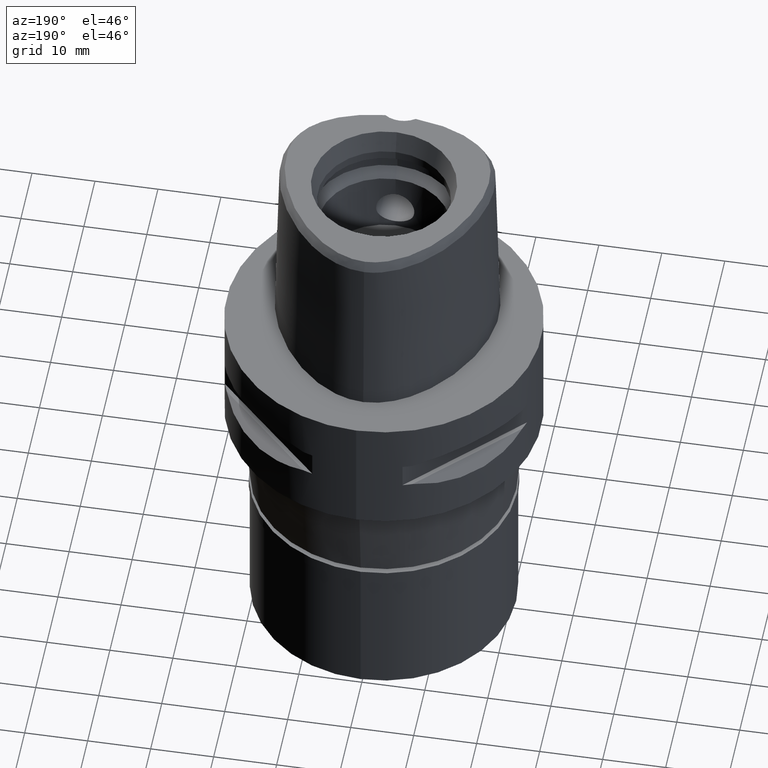
[diagram: clean part render]
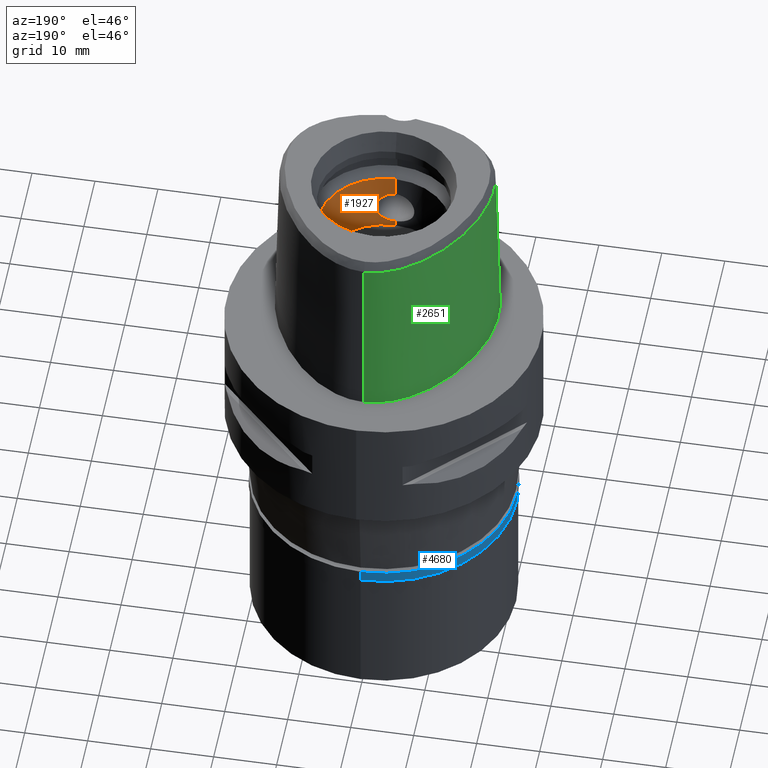
[diagram: same view with three faces highlighted in distinct colors, each labeled with its STEP entity id]
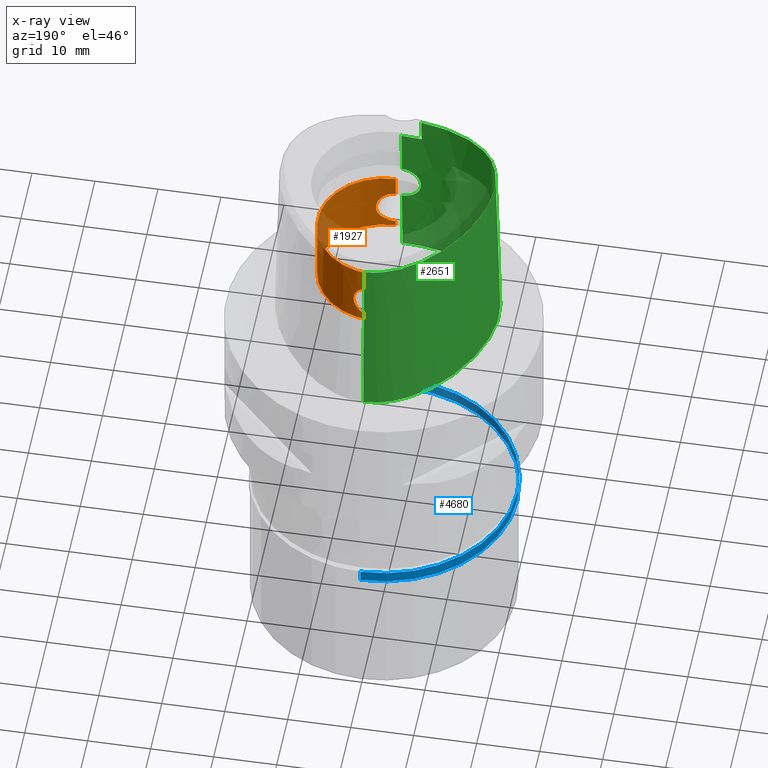
[diagram: x-ray of the same camera — body ghosted, the three highlighted faces saturated]
A machine part, auxiliary view with three faces highlighted in distinct colors.
The next image is the same camera in x-ray (body ghosted, the three faces saturated) — at least one of them is partly hidden behind the body in this view.
Their STEP definitions:

[orange] entity #1927 — the highlighted cylindrical surface (partial cylindrical patch) has radius 10.5 mm, axis along (0, 0, -1).
#12 = CARTESIAN_POINT ( 'NONE',  ( 0.7644328722393689546, 10.47235252375795156, 11.04563025745471805 ) ) ;
#60 = CARTESIAN_POINT ( 'NONE',  ( 2.828770907250974354, 10.11180310129674531, 15.14047419334929501 ) ) ;
#77 = CARTESIAN_POINT ( 'NONE',  ( 2.956986679341300217, -10.07537109669501341, 14.77360832568401072 ) ) ;
#79 = CARTESIAN_POINT ( 'NONE',  ( 2.510310004478912838, 10.19556583007182482, 15.73348620425393385 ) ) ;
#102 = CARTESIAN_POINT ( 'NONE',  ( 2.843660014230721789, -10.10762225541344073, 12.89715650632403232 ) ) ;
#105 = CARTESIAN_POINT ( 'NONE',  ( 2.681975179655844865, 10.15182205476541810, 15.45327219609056790 ) ) ;
#126 = CARTESIAN_POINT ( 'NONE',  ( 0.9818648975874065821, -10.45408928895023948, 16.88842626594486518 ) ) ;
#131 = CARTESIAN_POINT ( 'NONE',  ( 2.657257981561726989, 10.15831619955480569, 15.49807379354975190 ) ) ;
#152 = CARTESIAN_POINT ( 'NONE',  ( 2.528379461476236045, -10.19105076230533946, 15.70581389984506515 ) ) ;
#154 = CARTESIAN_POINT ( 'NONE',  ( 2.834203462069665225, 10.11027930292850741, 15.12692360436017580 ) ) ;
#170 = CARTESIAN_POINT ( 'NONE',  ( 1.207564511995264933, -10.43027885482270101, 11.19921020022612801 ) ) ;
#172 = CARTESIAN_POINT ( 'NONE',  ( 2.741533021382466462, -10.13589786049095665, 15.33746837654327955 ) ) ;
#199 = CARTESIAN_POINT ( 'NONE',  ( 1.830863132184202602, 10.33911442450520646, 16.43973170439046427 ) ) ;
#227 = CARTESIAN_POINT ( 'NONE',  ( 1.272349449314019498, 10.42259203368202058, 16.77204083735238171 ) ) ;
#244 = CARTESIAN_POINT ( 'NONE',  ( 0.7767280787823220845, -10.47837481681761673, 11.02081227802408847 ) ) ;
#251 = CARTESIAN_POINT ( 'NONE',  ( 1.516548377167537431, 10.39024995866839873, 16.64817640921985742 ) ) ;
#268 = CARTESIAN_POINT ( 'NONE',  ( 1.830938013690972532, -10.33910111539746879, 11.56032453211282274 ) ) ;
#276 = CARTESIAN_POINT ( 'NONE',  ( 1.712685189253687179, 10.35936746892270222, 16.52373642030065781 ) ) ;
#309 = ORIENTED_EDGE ( 'NONE', *, *, #4385, .F. ) ;
#324 = DIRECTION ( 'NONE',  ( 0.0000000000000000000, 0.0000000000000000000, 1.000000000000000000 ) ) ;
#370 = LINE ( 'NONE', #1859, #2536 ) ;
#381 = CARTESIAN_POINT ( 'NONE',  ( 0.3779781680481009154, 10.49473381404913397, 10.96713762499426537 ) ) ;
#406 = ORIENTED_EDGE ( 'NONE', *, *, #2480, .T. ) ;
#447 = CARTESIAN_POINT ( 'NONE',  ( 2.813664991188492337, -10.11602483407381214, 15.17726874555562766 ) ) ;
#450 = CARTESIAN_POINT ( 'NONE',  ( 2.553227061486648353, 10.18485617769791141, 15.66839541771974176 ) ) ;
#468 = CARTESIAN_POINT ( 'NONE',  ( 2.977556509205044222, -10.06925725695987239, 13.33193022069699119 ) ) ;
#472 = CARTESIAN_POINT ( 'NONE',  ( 2.120829281388066700, 10.28357927356465140, 11.80800683328900647 ) ) ;
#494 = CARTESIAN_POINT ( 'NONE',  ( 2.954228294274515942, -10.07609035018750809, 13.23501292991961265 ) ) ;
#496 = CARTESIAN_POINT ( 'NONE',  ( 2.648092778247905343, 10.16081364554814037, 12.48326966985719366 ) ) ;
#515 = CARTESIAN_POINT ( 'NONE',  ( 1.281767955716173635, -10.42230165865831815, 16.77125038696284065 ) ) ;
#519 = CARTESIAN_POINT ( 'NONE',  ( 3.049961494770651704, 10.04738013358863569, 14.18695489233083151 ) ) ;
#539 = CARTESIAN_POINT ( 'NONE',  ( 2.335991229544123193, -10.23703288360913888, 12.03807568451768617 ) ) ;
#542 = CARTESIAN_POINT ( 'NONE',  ( 0.6675247654096677641, -10.47893702145387351, 16.97767783069324921 ) ) ;
#545 = CARTESIAN_POINT ( 'NONE',  ( 2.772269289896381661, 10.12749293452428034, 12.72814929731125666 ) ) ;
#562 = CARTESIAN_POINT ( 'NONE',  ( 1.607918426449034266, -10.37656850566341049, 11.40590491975869014 ) ) ;
#564 = CARTESIAN_POINT ( 'NONE',  ( 2.558889458380786852, -10.18343894442972442, 12.34028128467262064 ) ) ;
#583 = CARTESIAN_POINT ( 'NONE',  ( 2.277594307535055318, -10.25007841822608867, 11.97122212124371110 ) ) ;
#612 = CARTESIAN_POINT ( 'NONE',  ( 1.726103317358874012, -10.35713918148479884, 11.48539891486119124 ) ) ;
#638 = CARTESIAN_POINT ( 'NONE',  ( 1.778789441788576342, -10.34819399540658758, 11.52232554167647294 ) ) ;
#647 = CARTESIAN_POINT ( 'NONE',  ( 2.370604378867806616, 10.22906332247968564, 15.91970092605662579 ) ) ;
#790 = CARTESIAN_POINT ( 'NONE',  ( 0.9819053905286625472, 10.45408544124088479, 11.11158742246876407 ) ) ;
#804 = DIRECTION ( 'NONE',  ( 0.0000000000000000000, 0.0000000000000000000, 1.000000000000000000 ) ) ;
#808 = CARTESIAN_POINT ( 'NONE',  ( 2.498041304515479233, 10.19855480051325891, 12.24990664319617117 ) ) ;
#813 = ORIENTED_EDGE ( 'NONE', *, *, #2990, .F. ) ;
#827 = CARTESIAN_POINT ( 'NONE',  ( 2.648023962982474888, -10.16083164796762262, 15.51685064013476456 ) ) ;
#831 = CARTESIAN_POINT ( 'NONE',  ( 3.050019155252606140, 10.04735989706098387, 13.90746640918183807 ) ) ;
#832 = B_SPLINE_CURVE_WITH_KNOTS ( 'NONE', 3,
 ( #4101, #2200, #381, #1841, #12, #1502, #790, #2274, #1267, #2753, #1979, #3796, #1622, #2365, #3024, #1642, #3863, #2392, #4479, #3093, #1173, #472, #1199, #1592, #4500, #4546, #901, #3112, #808, #3067, #1244, #3838, #4523, #4190, #2732, #496, #2686, #878, #545, #2711, #1222, #1953, #4212, #2663, #3047, #3426, #4146, #4167, #831, #519, #2024, #4574, #2295, #855, #2003, #3478, #2343, #154, #60, #3451, #2320, #105, #131, #3816, #1549, #4126, #3770, #450, #1933, #3400, #79, #1567, #647, #2459, #3981, #1691, #1740, #3135, #4258, #1289, #1714, #199, #2780, #2072, #997, #276, #3936, #2128, #968, #1764, #251, #4645, #1312, #227, #3159, #3548, #3886, #4308, #2412, #3957, #3176 ),
 .UNSPECIFIED., .F., .F.,
 ( 4, 2, 2, 1, 1, 1, 2, 2, 2, 2, 2, 1, 2, 2, 2, 2, 1, 1, 1, 2, 2, 2, 2, 1, 2, 2, 2, 2, 2, 2, 2, 1, 1, 2, 2, 2, 2, 1, 1, 1, 2, 2, 2, 2, 2, 2, 2, 2, 1, 1, 1, 2, 2, 2, 2, 1, 2, 2, 4 ),
 ( 0.0000000000000000000, 0.06250000000000349720, 0.09375000000000527356, 0.1093750000000060923, 0.1171875000000064115, 0.1210937500000066336, 0.1230468750000067446, 0.1250000000000068556, 0.1875000000000142386, 0.2187500000000179856, 0.2343750000000199840, 0.2421875000000211220, 0.2460937500000218436, 0.2500000000000225930, 0.2812500000000280331, 0.2968750000000304756, 0.3046875000000317524, 0.3085937500000324185, 0.3105468750000324185, 0.3115234375000326406, 0.3125000000000328626, 0.3437500000000369149, 0.3593750000000391354, 0.3671875000000403011, 0.3710937500000408562, 0.3750000000000414113, 0.4375000000000536793, 0.4687500000000601186, 0.5000000000000665024, 0.5625000000000800471, 0.5937500000000867084, 0.6093750000000903722, 0.6171875000000922595, 0.6210937500000931477, 0.6250000000000940359, 0.6562500000001034728, 0.6718750000001079137, 0.6796875000001103562, 0.6835937500001113554, 0.6855468750001114664, 0.6865234375001110223, 0.6875000000001106892, 0.7187500000001025846, 0.7343750000000985878, 0.7421875000000965894, 0.7500000000000945910, 0.7812500000000855982, 0.7968750000000811573, 0.8046875000000786038, 0.8085937500000773825, 0.8105468750000767164, 0.8115234375000762723, 0.8125000000000759393, 0.8437500000000652811, 0.8593750000000600631, 0.8671875000000571765, 0.8710937500000557332, 0.8750000000000542899, 1.000000000000000000 ),
 .UNSPECIFIED. ) ;
#851 = CARTESIAN_POINT ( 'NONE',  ( 2.772213920274666066, -10.12750812442848058, 15.27197139182896457 ) ) ;
#855 = CARTESIAN_POINT ( 'NONE',  ( 2.911465325549853045, 10.08839511512848475, 14.91017168036368190 ) ) ;
#876 = CARTESIAN_POINT ( 'NONE',  ( 1.108036877770263162, -10.44134659831613376, 16.84166227034580388 ) ) ;
#878 = CARTESIAN_POINT ( 'NONE',  ( 2.741591665433515512, 10.13588195212596510, 12.66265186187171210 ) ) ;
#897 = CARTESIAN_POINT ( 'NONE',  ( 2.809893642341107611, -10.11707643658238354, 15.18622557726201805 ) ) ;
#900 = ORIENTED_EDGE ( 'NONE', *, *, #1876, .T. ) ;
#901 = CARTESIAN_POINT ( 'NONE',  ( 2.445900646986642002, 10.21127407338490301, 12.17744361161186895 ) ) ;
#919 = CARTESIAN_POINT ( 'NONE',  ( 2.510367166257442051, -10.19555177877371221, 12.26659596999416380 ) ) ;
#945 = EDGE_CURVE ( 'NONE', #3431, #1349, #370, .T. ) ;
#961 = CARTESIAN_POINT ( 'NONE',  ( 1.239813251620787593, -10.42652988550363347, 11.21318598562905144 ) ) ;
#968 = CARTESIAN_POINT ( 'NONE',  ( 1.702525299725996311, 10.36104329154948367, 16.53059667788212650 ) ) ;
#995 = VERTEX_POINT ( 'NONE', #1967 ) ;
#997 = CARTESIAN_POINT ( 'NONE',  ( 1.726017852877425041, 10.35715339244752187, 16.51465975704680389 ) ) ;
#1017 = CARTESIAN_POINT ( 'NONE',  ( 1.707157289724721139, -10.36028011093643109, 11.47252714624779912 ) ) ;
#1060 = DIRECTION ( 'NONE',  ( 0.0000000000000000000, 0.0000000000000000000, 1.000000000000000000 ) ) ;
#1146 = DIRECTION ( 'NONE',  ( 0.0000000000000000000, 0.0000000000000000000, 1.000000000000000000 ) ) ;
#1170 = CARTESIAN_POINT ( 'NONE',  ( 1.436888972317075686, -10.40188379193003243, 16.69772358642175902 ) ) ;
#1173 = CARTESIAN_POINT ( 'NONE',  ( 2.097948515238012845, 10.28825542629926382, 11.78609780904590743 ) ) ;
#1195 = CARTESIAN_POINT ( 'NONE',  ( 0.3779635305552171420, -10.49473425536346838, 17.03286364232211625 ) ) ;
#1199 = CARTESIAN_POINT ( 'NONE',  ( 2.131094279062113905, 10.28146244533435372, 11.81797094469920140 ) ) ;
#1222 = CARTESIAN_POINT ( 'NONE',  ( 2.800881353689697484, 10.11958410063842351, 12.79264874917978112 ) ) ;
#1241 = CARTESIAN_POINT ( 'NONE',  ( 2.029201386634412518, -10.30195407134085173, 16.27722676075444852 ) ) ;
#1244 = CARTESIAN_POINT ( 'NONE',  ( 2.522992892395588882, 10.19238544975819671, 12.28622226176498344 ) ) ;
#1264 = CARTESIAN_POINT ( 'NONE',  ( 2.445830690319931389, -10.21129086319720791, 15.82265013605898751 ) ) ;
#1267 = CARTESIAN_POINT ( 'NONE',  ( 1.108082832593878964, 10.44134168266056051, 11.15835564398403612 ) ) ;
#1284 = CARTESIAN_POINT ( 'NONE',  ( 2.571797960874921074, -10.18019747357963034, 12.36028120962104460 ) ) ;
#1289 = CARTESIAN_POINT ( 'NONE',  ( 1.986584387686084252, 10.31055259333881402, 16.31651033312892451 ) ) ;
#1306 = CARTESIAN_POINT ( 'NONE',  ( 1.702615633415136775, -10.36102848885471417, 11.46946409842916914 ) ) ;
#1312 = CARTESIAN_POINT ( 'NONE',  ( 1.337970309845696315, 10.41443915281081267, 16.74128976039517624 ) ) ;
#1332 = CARTESIAN_POINT ( 'NONE',  ( 2.370664244564193890, -10.22904926277332649, 12.08037302452463990 ) ) ;
#1349 = VERTEX_POINT ( 'NONE', #1531 ) ;
#1359 = CARTESIAN_POINT ( 'NONE',  ( 0.0000000000000000000, -10.50000000000000000, 10.94999999999999929 ) ) ;
#1382 = VECTOR ( 'NONE', #324, 1000.000000000000000 ) ;
#1389 = CARTESIAN_POINT ( 'NONE',  ( 1.986658569996702317, -10.31053817578390408, 11.68355315824742036 ) ) ;
#1434 = CYLINDRICAL_SURFACE ( 'NONE', #3462, 10.50000000000000000 ) ;
#1502 = CARTESIAN_POINT ( 'NONE',  ( 0.9094639784770820468, 10.46050360536850121, 11.08831409320829486 ) ) ;
#1510 = CARTESIAN_POINT ( 'NONE',  ( 0.0000000000000000000, -10.50000000000000000, 17.05000000000000071 ) ) ;
#1531 = CARTESIAN_POINT ( 'NONE',  ( 0.0000000000000000000, 10.50000000000000000, 20.40000000000000213 ) ) ;
#1549 = CARTESIAN_POINT ( 'NONE',  ( 2.596937013440557163, 10.17384367669722778, 15.59990026743404279 ) ) ;
#1565 = CARTESIAN_POINT ( 'NONE',  ( 3.013641362973439097, -10.05855718080038663, 14.48000078251808453 ) ) ;
#1567 = CARTESIAN_POINT ( 'NONE',  ( 2.463382779943756429, 10.20725194606728259, 15.80119747554678256 ) ) ;
#1589 = CARTESIAN_POINT ( 'NONE',  ( 2.834239843692495597, -10.11026920511498162, 12.87316791113137882 ) ) ;
#1592 = CARTESIAN_POINT ( 'NONE',  ( 2.244470943482644198, 10.25780524263998927, 11.92999465042633567 ) ) ;
#1616 = CARTESIAN_POINT ( 'NONE',  ( 1.066050809081824369, -10.44573814706574133, 16.85782957033524099 ) ) ;
#1622 = CARTESIAN_POINT ( 'NONE',  ( 1.281810048478397190, 10.42229639479935166, 11.22876934626269829 ) ) ;
#1640 = CARTESIAN_POINT ( 'NONE',  ( 2.528549443011954612, -10.19100864891434810, 15.70556444954446640 ) ) ;
#1642 = CARTESIAN_POINT ( 'NONE',  ( 1.779927827134712537, 10.34774267279508209, 11.52060656174464981 ) ) ;
#1661 = CARTESIAN_POINT ( 'NONE',  ( 1.176981799014775953, -10.43377287650395324, 11.18621499094171412 ) ) ;
#1663 = CARTESIAN_POINT ( 'NONE',  ( 2.790655693482771760, -10.12247991050751672, 12.76597412795767106 ) ) ;
#1691 = CARTESIAN_POINT ( 'NONE',  ( 2.256989910331312910, 10.25462162600888760, 16.05170921238603654 ) ) ;
#1714 = CARTESIAN_POINT ( 'NONE',  ( 1.868162739396465266, 10.33243612483862783, 16.41143679003897304 ) ) ;
#1740 = CARTESIAN_POINT ( 'NONE',  ( 2.213657882177575864, 10.26403318602262260, 16.09838817386110676 ) ) ;
#1764 = CARTESIAN_POINT ( 'NONE',  ( 1.607833653143706520, 10.37658153257058480, 16.59414723454929685 ) ) ;
#1766 = B_SPLINE_CURVE_WITH_KNOTS ( 'NONE', 3,
 ( #3396, #2387, #1195, #542, #2659, #3447, #126, #1616, #876, #3091, #4207, #4544, #515, #1170, #4569, #2020, #3494, #4121, #1241, #2292, #1999, #4143, #4518, #2682, #2363, #3859, #1264, #3765, #2709, #3834, #3475, #4164, #152, #1640, #3109, #827, #2750, #172, #851, #2340, #3022, #897, #447, #1929, #77, #1565, #3044, #4497, #1977, #2317, #3791, #468, #494, #1949, #3422, #3812, #102, #1589, #3064, #1663, #2775, #2407, #2048, #3880, #3516, #1284, #564, #3132, #4591, #4234, #919, #3130, #1332, #539, #583, #2793, #4639, #2506, #2119, #1389, #4323, #268, #638, #2452, #612, #3492, #1017, #3514, #1306, #562, #2865, #2067, #2018, #4301, #961, #170, #2814, #1661, #244, #4277, #1359 ),
 .UNSPECIFIED., .F., .F.,
 ( 4, 2, 2, 1, 1, 1, 2, 2, 2, 2, 2, 1, 2, 2, 2, 2, 1, 1, 1, 2, 2, 2, 2, 1, 2, 2, 2, 2, 2, 2, 2, 1, 1, 2, 2, 2, 2, 1, 1, 1, 2, 2, 2, 2, 2, 2, 2, 2, 1, 1, 1, 2, 2, 2, 2, 1, 2, 2, 4 ),
 ( 0.0000000000000000000, 0.06250000000001416922, 0.09375000000002114975, 0.1093750000000246747, 0.1171875000000262290, 0.1210937500000270062, 0.1230468750000273948, 0.1250000000000277833, 0.1875000000000332512, 0.2187500000000362210, 0.2343750000000377476, 0.2421875000000388023, 0.2460937500000393019, 0.2500000000000398015, 0.2812500000000436318, 0.2968750000000454636, 0.3046875000000470179, 0.3085937500000478506, 0.3105468750000482392, 0.3115234375000484057, 0.3125000000000485723, 0.3437500000000579536, 0.3593750000000626721, 0.3671875000000651146, 0.3710937500000662803, 0.3750000000000673905, 0.4375000000000900391, 0.4687500000001013079, 0.5000000000001125766, 0.5625000000001357803, 0.5937500000001469935, 0.6093750000001526557, 0.6171875000001557643, 0.6210937500001573186, 0.6250000000001588729, 0.6562500000001719735, 0.6718750000001783018, 0.6796875000001816325, 0.6835937500001831868, 0.6855468750001837419, 0.6865234375001838529, 0.6875000000001839640, 0.7187500000001657563, 0.7343750000001566525, 0.7421875000001521006, 0.7500000000001474376, 0.7812500000001286748, 0.7968750000001191269, 0.8046875000001143530, 0.8085937500001120215, 0.8105468750001111333, 0.8115234375001105782, 0.8125000000001100231, 0.8437500000000911493, 0.8593750000000818234, 0.8671875000000772715, 0.8710937500000750511, 0.8750000000000728306, 1.000000000000000000 ),
 .UNSPECIFIED. ) ;
#1841 = CARTESIAN_POINT ( 'NONE',  ( 0.6675516464288157037, 10.47893525619653055, 11.02232805372018909 ) ) ;
#1844 = DIRECTION ( 'NONE',  ( 0.0000000000000000000, 0.0000000000000000000, -1.000000000000000000 ) ) ;
#1859 = CARTESIAN_POINT ( 'NONE',  ( 0.0000000000000000000, 10.50000000000000000, 17.05000000000000071 ) ) ;
#1873 = LINE ( 'NONE', #3661, #2302 ) ;
#1876 = EDGE_CURVE ( 'NONE', #3727, #2875, #1873, .T. ) ;
#1898 = FACE_OUTER_BOUND ( 'NONE', #4607, .T. ) ;
#1909 = CARTESIAN_POINT ( 'NONE',  ( 0.0000000000000000000, -10.50000000000000000, 10.00000000000000000 ) ) ;
#1927 = ADVANCED_FACE ( 'NONE', ( #1898 ), #1434, .F. ) ;
#1929 = CARTESIAN_POINT ( 'NONE',  ( 2.898930069621017402, -10.09219144692567305, 14.97099650788284464 ) ) ;
#1933 = CARTESIAN_POINT ( 'NONE',  ( 2.549478907164885122, 10.18579330282887696, 15.67411737918740933 ) ) ;
#1949 = CARTESIAN_POINT ( 'NONE',  ( 2.911489601567965213, -10.08838801125362217, 13.08990615429935822 ) ) ;
#1953 = CARTESIAN_POINT ( 'NONE',  ( 2.809945018964708385, 10.11706215213262006, 12.81389612988609095 ) ) ;
#1967 = CARTESIAN_POINT ( 'NONE',  ( 0.0000000000000000000, -10.50000000000000000, 10.94999999999999929 ) ) ;
#1977 = CARTESIAN_POINT ( 'NONE',  ( 3.050017670137348702, -10.04736085073329654, 14.09258237324075580 ) ) ;
#1979 = CARTESIAN_POINT ( 'NONE',  ( 1.138025385408485191, 10.43811717231760205, 11.17025799955633403 ) ) ;
#1999 = CARTESIAN_POINT ( 'NONE',  ( 2.097860066204936480, -10.28827351066335360, 16.21398599069636504 ) ) ;
#2003 = CARTESIAN_POINT ( 'NONE',  ( 2.888157058367122332, 10.09505688767124809, 14.98266059119568538 ) ) ;
#2018 = CARTESIAN_POINT ( 'NONE',  ( 1.338038232286598905, -10.41443038111563979, 11.25874332938451161 ) ) ;
#2020 = CARTESIAN_POINT ( 'NONE',  ( 1.779863704219062814, -10.34775402116722454, 16.47943896273561393 ) ) ;
#2024 = CARTESIAN_POINT ( 'NONE',  ( 3.032802068629277148, 10.05285554330316167, 14.37849039406449947 ) ) ;
#2048 = CARTESIAN_POINT ( 'NONE',  ( 2.657309839625743741, -10.15830287041210589, 12.50201827617990347 ) ) ;
#2067 = CARTESIAN_POINT ( 'NONE',  ( 1.382355937309598382, -10.40864474326691180, 11.28078011621168386 ) ) ;
#2072 = CARTESIAN_POINT ( 'NONE',  ( 1.753581372666702221, 10.35252304531743661, 16.49561924092350296 ) ) ;
#2119 = CARTESIAN_POINT ( 'NONE',  ( 2.074419984192248823, -10.29348261052690106, 11.76022976264371955 ) ) ;
#2128 = CARTESIAN_POINT ( 'NONE',  ( 1.703345852200796040, 10.36090803186862352, 16.53004307231136139 ) ) ;
#2200 = CARTESIAN_POINT ( 'NONE',  ( 0.1864205676355288610, 10.50000000000000000, 10.94999999999999396 ) ) ;
#2258 = DIRECTION ( 'NONE',  ( 0.0000000000000000000, 0.0000000000000000000, -1.000000000000000000 ) ) ;
#2274 = CARTESIAN_POINT ( 'NONE',  ( 1.066094950121599938, 10.44573359945943736, 11.14218687602582847 ) ) ;
#2290 = DIRECTION ( 'NONE',  ( 0.0000000000000000000, -1.000000000000000000, 0.0000000000000000000 ) ) ;
#2292 = CARTESIAN_POINT ( 'NONE',  ( 2.063528294945519814, -10.29521765066855465, 16.24634466453865400 ) ) ;
#2295 = CARTESIAN_POINT ( 'NONE',  ( 2.954210448130882405, 10.07609567979844201, 14.76505682574230072 ) ) ;
#2302 = VECTOR ( 'NONE', #1060, 1000.000000000000000 ) ;
#2317 = CARTESIAN_POINT ( 'NONE',  ( 3.049964494111530922, -10.04737991816962861, 13.81309435375354511 ) ) ;
#2320 = CARTESIAN_POINT ( 'NONE',  ( 2.751144972727844529, 10.13338607910161215, 15.32047911756069958 ) ) ;
#2340 = CARTESIAN_POINT ( 'NONE',  ( 2.786952059432127982, -10.12345046128885606, 15.23949804159740573 ) ) ;
#2343 = CARTESIAN_POINT ( 'NONE',  ( 2.843625147824316635, 10.10763199968278236, 15.10293340376150972 ) ) ;
#2363 = CARTESIAN_POINT ( 'NONE',  ( 2.323899745093551239, -10.23994599156334395, 15.97793856195457707 ) ) ;
#2365 = CARTESIAN_POINT ( 'NONE',  ( 1.436933950762821155, 10.40187738279319518, 11.30229941035335983 ) ) ;
#2367 = EDGE_CURVE ( 'NONE', #2931, #995, #2981, .T. ) ;
#2387 = CARTESIAN_POINT ( 'NONE',  ( 0.1864136884395216909, -10.49999999999999822, 17.05000000000000071 ) ) ;
#2392 = CARTESIAN_POINT ( 'NONE',  ( 1.960744809979706016, 10.31513503196861414, 11.66298041393227791 ) ) ;
#2407 = CARTESIAN_POINT ( 'NONE',  ( 2.682024634402748742, -10.15180925603599960, 12.54681912037400515 ) ) ;
#2412 = CARTESIAN_POINT ( 'NONE',  ( 0.7766917934557950876, 10.47837698303876941, 16.97919351331313109 ) ) ;
#2416 = ORIENTED_EDGE ( 'NONE', *, *, #2721, .T. ) ;
#2452 = CARTESIAN_POINT ( 'NONE',  ( 1.753662826720784551, -10.35250926079029732, 11.50443802579578367 ) ) ;
#2459 = CARTESIAN_POINT ( 'NONE',  ( 2.335928146357295176, 10.23704748168701606, 15.96199958375532368 ) ) ;
#2480 = EDGE_CURVE ( 'NONE', #2799, #2931, #3621, .T. ) ;
#2506 = CARTESIAN_POINT ( 'NONE',  ( 2.190083341655565174, -10.26908082567762115, 11.87700317515828630 ) ) ;
#2536 = VECTOR ( 'NONE', #1146, 1000.000000000000000 ) ;
#2659 = CARTESIAN_POINT ( 'NONE',  ( 0.7644018131113874404, -10.47235484065820543, 16.95437761759226447 ) ) ;
#2663 = CARTESIAN_POINT ( 'NONE',  ( 2.898965823211166803, 10.09218109153200338, 13.02911380368086469 ) ) ;
#2682 = CARTESIAN_POINT ( 'NONE',  ( 2.244393587237371257, -10.25782231733149708, 16.07009023214862253 ) ) ;
#2686 = CARTESIAN_POINT ( 'NONE',  ( 2.719533833140415524, 10.14184048478675138, 12.61825208719153402 ) ) ;
#2709 = CARTESIAN_POINT ( 'NONE',  ( 2.497966037192530298, -10.19857325001028947, 15.75020071338021133 ) ) ;
#2711 = CARTESIAN_POINT ( 'NONE',  ( 2.787005863204375267, 10.12343562107082207, 12.76062294602073344 ) ) ;
#2721 = EDGE_CURVE ( 'NONE', #2875, #1349, #4691, .T. ) ;
#2732 = CARTESIAN_POINT ( 'NONE',  ( 2.593435763076664013, 10.17492583642775728, 12.39088093046238015 ) ) ;
#2746 = CARTESIAN_POINT ( 'NONE',  ( 0.0000000000000000000, 10.50000000000000000, 10.00000000000000000 ) ) ;
#2750 = CARTESIAN_POINT ( 'NONE',  ( 2.719472815884277583, -10.14185689757689524, 15.38186804613106595 ) ) ;
#2753 = CARTESIAN_POINT ( 'NONE',  ( 1.126051972302298143, 10.43941314776644624, 11.16547208117768797 ) ) ;
#2775 = CARTESIAN_POINT ( 'NONE',  ( 2.751188134695616849, -10.13337465502502788, 12.67961101135870194 ) ) ;
#2780 = CARTESIAN_POINT ( 'NONE',  ( 1.778710552073300422, 10.34820755775503187, 16.47773110354874504 ) ) ;
#2793 = CARTESIAN_POINT ( 'NONE',  ( 2.257063439175340580, -10.25460528032561314, 11.94837173475541725 ) ) ;
#2799 = VERTEX_POINT ( 'NONE', #2746 ) ;
#2814 = CARTESIAN_POINT ( 'NONE',  ( 1.186146787165589522, -10.43273444480819023, 11.19007271402898063 ) ) ;
#2865 = CARTESIAN_POINT ( 'NONE',  ( 1.516627495308581874, -10.39023848026744901, 11.35186860301582179 ) ) ;
#2875 = VERTEX_POINT ( 'NONE', #3924 ) ;
#2922 = LINE ( 'NONE', #3280, #1382 ) ;
#2929 = CARTESIAN_POINT ( 'NONE',  ( 0.0000000000000000000, -10.50000000000000000, 10.00000000000000000 ) ) ;
#2931 = VERTEX_POINT ( 'NONE', #1909 ) ;
#2938 = DIRECTION ( 'NONE',  ( 0.0000000000000000000, -1.000000000000000000, 0.0000000000000000000 ) ) ;
#2957 = DIRECTION ( 'NONE',  ( 0.0000000000000000000, 1.000000000000000000, 0.0000000000000000000 ) ) ;
#2981 = LINE ( 'NONE', #2929, #4219 ) ;
#2990 = EDGE_CURVE ( 'NONE', #3599, #3431, #832, .T. ) ;
#2995 = CARTESIAN_POINT ( 'NONE',  ( 0.0000000000000000000, 1.483659597167000164E-14, 20.40000000000000213 ) ) ;
#3022 = CARTESIAN_POINT ( 'NONE',  ( 2.800829018532693393, -10.11959860548664736, 15.20747265408570392 ) ) ;
#3024 = CARTESIAN_POINT ( 'NONE',  ( 1.691513767072765795, 10.36238440746009459, 11.46006927488918237 ) ) ;
#3044 = CARTESIAN_POINT ( 'NONE',  ( 3.027470973073002725, -10.05435531041073816, 14.38252759951386039 ) ) ;
#3047 = CARTESIAN_POINT ( 'NONE',  ( 2.957011265618187057, 10.07536372342022979, 13.22648922785774239 ) ) ;
#3064 = CARTESIAN_POINT ( 'NONE',  ( 2.828808578041166477, -10.11179268610133342, 12.85961924604321105 ) ) ;
#3067 = CARTESIAN_POINT ( 'NONE',  ( 2.515035951388095548, 10.19435567759010830, 12.27454023287891083 ) ) ;
#3091 = CARTESIAN_POINT ( 'NONE',  ( 1.126005242805647066, -10.43941822503615668, 16.83454648152940436 ) ) ;
#3093 = CARTESIAN_POINT ( 'NONE',  ( 2.063614014655548168, 10.29520040182834073, 11.75373399364343285 ) ) ;
#3103 = CARTESIAN_POINT ( 'NONE',  ( 0.0000000000000000000, 10.50000000000000000, 10.94999999999999929 ) ) ;
#3109 = CARTESIAN_POINT ( 'NONE',  ( 2.593360843622706913, -10.17494500040528038, 15.60924016109213674 ) ) ;
#3112 = CARTESIAN_POINT ( 'NONE',  ( 2.481565336177589121, 10.20259747832051289, 12.22665741515412741 ) ) ;
#3130 = CARTESIAN_POINT ( 'NONE',  ( 2.463437484489511942, -10.20723860699237662, 12.19887743289825011 ) ) ;
#3132 = CARTESIAN_POINT ( 'NONE',  ( 2.553290294326346022, -10.18484040687243208, 12.33170135500730602 ) ) ;
#3135 = CARTESIAN_POINT ( 'NONE',  ( 2.189992370806535416, 10.26910034442206232, 16.12309059647834530 ) ) ;
#3152 = AXIS2_PLACEMENT_3D ( 'NONE', #2995, #804, #2290 ) ;
#3159 = CARTESIAN_POINT ( 'NONE',  ( 1.239751493999014853, 10.42653732169874026, 16.78684146358126483 ) ) ;
#3176 = CARTESIAN_POINT ( 'NONE',  ( 0.0000000000000000000, 10.50000000000000000, 17.05000000000000071 ) ) ;
#3179 = EDGE_CURVE ( 'NONE', #2799, #3599, #2922, .T. ) ;
#3280 = CARTESIAN_POINT ( 'NONE',  ( 0.0000000000000000000, 10.50000000000000000, 10.00000000000000000 ) ) ;
#3288 = CARTESIAN_POINT ( 'NONE',  ( 0.0000000000000000000, 1.610410540878999754E-14, 10.00000000000000000 ) ) ;
#3369 = ORIENTED_EDGE ( 'NONE', *, *, #3179, .F. ) ;
#3396 = CARTESIAN_POINT ( 'NONE',  ( 0.0000000000000000000, -10.50000000000000000, 17.05000000000000071 ) ) ;
#3400 = CARTESIAN_POINT ( 'NONE',  ( 2.546814507100706226, 10.18645853711469584, 15.67816563555154907 ) ) ;
#3422 = CARTESIAN_POINT ( 'NONE',  ( 2.888184885178353589, -10.09504884709284234, 13.01742153984792871 ) ) ;
#3426 = CARTESIAN_POINT ( 'NONE',  ( 3.013653676702447104, 10.05855318373765428, 13.52007797320703020 ) ) ;
#3431 = VERTEX_POINT ( 'NONE', #4092 ) ;
#3447 = CARTESIAN_POINT ( 'NONE',  ( 0.9094266330661974207, -10.46050691522601284, 16.91169753045786450 ) ) ;
#3451 = CARTESIAN_POINT ( 'NONE',  ( 2.790615507290158170, 10.12249070693155062, 15.23411664781197139 ) ) ;
#3462 = AXIS2_PLACEMENT_3D ( 'NONE', #4393, #2258, #2938 ) ;
#3475 = CARTESIAN_POINT ( 'NONE',  ( 2.522912606083192344, -10.19240533433488238, 15.71389592339235364 ) ) ;
#3478 = CARTESIAN_POINT ( 'NONE',  ( 2.857507648501951270, 10.10372505167391566, 15.06691445028660858 ) ) ;
#3492 = CARTESIAN_POINT ( 'NONE',  ( 1.712772917311422338, -10.35935300293543548, 11.47632311911521441 ) ) ;
#3494 = CARTESIAN_POINT ( 'NONE',  ( 1.915139504783101243, -10.32357792958351794, 16.37444704533520934 ) ) ;
#3514 = CARTESIAN_POINT ( 'NONE',  ( 1.703435302418567554, -10.36089336679915718, 11.47001715247144027 ) ) ;
#3516 = CARTESIAN_POINT ( 'NONE',  ( 2.596995247552868147, -10.17382896461102604, 12.40019430313057924 ) ) ;
#3548 = CARTESIAN_POINT ( 'NONE',  ( 1.207504766582713218, 10.43028588108714416, 16.80081555488981948 ) ) ;
#3599 = VERTEX_POINT ( 'NONE', #3103 ) ;
#3604 = ORIENTED_EDGE ( 'NONE', *, *, #945, .F. ) ;
#3621 = CIRCLE ( 'NONE', #4001, 10.50000000000000000 ) ;
#3661 = CARTESIAN_POINT ( 'NONE',  ( 0.0000000000000000000, -10.50000000000000000, 17.05000000000000071 ) ) ;
#3727 = VERTEX_POINT ( 'NONE', #1510 ) ;
#3765 = CARTESIAN_POINT ( 'NONE',  ( 2.481492152316993938, -10.20261530098453839, 15.77344495799443180 ) ) ;
#3770 = CARTESIAN_POINT ( 'NONE',  ( 2.558826880530305825, 10.18345457773078166, 15.65981519430478386 ) ) ;
#3791 = CARTESIAN_POINT ( 'NONE',  ( 3.032808187794720833, -10.05285401972627035, 13.62156311205896486 ) ) ;
#3796 = CARTESIAN_POINT ( 'NONE',  ( 1.145870234969317725, 10.43725918652054574, 11.17342943017690260 ) ) ;
#3812 = CARTESIAN_POINT ( 'NONE',  ( 2.857540295024301180, -10.10371583152439001, 12.93317307471439115 ) ) ;
#3816 = CARTESIAN_POINT ( 'NONE',  ( 2.617492264183674422, 10.16858064609105305, 15.56586095002465875 ) ) ;
#3834 = CARTESIAN_POINT ( 'NONE',  ( 2.514957467327662233, -10.19437505160482615, 15.72557414078913673 ) ) ;
#3838 = CARTESIAN_POINT ( 'NONE',  ( 2.526288925182328615, 10.19156878075087569, 12.29109156738480912 ) ) ;
#3859 = CARTESIAN_POINT ( 'NONE',  ( 2.418443111457832195, -10.21786318502456758, 15.85908463004522062 ) ) ;
#3863 = CARTESIAN_POINT ( 'NONE',  ( 1.915213600525814464, 10.32356395646659841, 11.62561258695448174 ) ) ;
#3880 = CARTESIAN_POINT ( 'NONE',  ( 2.617548280684402595, -10.16856641303493980, 12.43423271031297972 ) ) ;
#3886 = CARTESIAN_POINT ( 'NONE',  ( 1.186088375304608977, 10.43274120320644549, 16.80995193905518548 ) ) ;
#3924 = CARTESIAN_POINT ( 'NONE',  ( 0.0000000000000000000, -10.50000000000000000, 20.40000000000000213 ) ) ;
#3936 = CARTESIAN_POINT ( 'NONE',  ( 1.707068535825800204, 10.36029469517854018, 16.52753279977807210 ) ) ;
#3957 = CARTESIAN_POINT ( 'NONE',  ( 0.3768313048369580365, 10.50000000000000711, 17.05000000000000426 ) ) ;
#3981 = CARTESIAN_POINT ( 'NONE',  ( 2.277523724951737272, 10.25009427110281734, 16.02885715371537501 ) ) ;
#4001 = AXIS2_PLACEMENT_3D ( 'NONE', #3288, #1844, #2957 ) ;
#4011 = DIRECTION ( 'NONE',  ( 0.0000000000000000000, 0.0000000000000000000, 1.000000000000000000 ) ) ;
#4092 = CARTESIAN_POINT ( 'NONE',  ( 0.0000000000000000000, 10.50000000000000000, 17.05000000000000071 ) ) ;
#4101 = CARTESIAN_POINT ( 'NONE',  ( 0.0000000000000000000, 10.50000000000000000, 10.94999999999999929 ) ) ;
#4121 = CARTESIAN_POINT ( 'NONE',  ( 1.960667200131438470, -10.31514995357488473, 16.33708452564077618 ) ) ;
#4126 = CARTESIAN_POINT ( 'NONE',  ( 2.571736876507964453, 10.18021279191266260, 15.63981460467570805 ) ) ;
#4143 = CARTESIAN_POINT ( 'NONE',  ( 2.120739015566862395, -10.28359792414145701, 16.19208048488864549 ) ) ;
#4146 = CARTESIAN_POINT ( 'NONE',  ( 3.027479936730608223, 10.05435225592430726, 13.61754494047652564 ) ) ;
#4164 = CARTESIAN_POINT ( 'NONE',  ( 2.526207825161622011, -10.19158889449050776, 15.70902831638674257 ) ) ;
#4167 = CARTESIAN_POINT ( 'NONE',  ( 3.045662405089224478, 10.04875557112598550, 13.81066655317246017 ) ) ;
#4190 = CARTESIAN_POINT ( 'NONE',  ( 2.528631888078448409, 10.19098818209350377, 12.29455778438524050 ) ) ;
#4207 = CARTESIAN_POINT ( 'NONE',  ( 1.137978140107146707, -10.43812235819200929, 16.82976099969853934 ) ) ;
#4212 = CARTESIAN_POINT ( 'NONE',  ( 2.813716357988171435, 10.11601053316103460, 12.82285403977503790 ) ) ;
#4219 = VECTOR ( 'NONE', #4011, 1000.000000000000000 ) ;
#4234 = CARTESIAN_POINT ( 'NONE',  ( 2.546878842368942575, -10.18644252142211393, 12.32193200427674995 ) ) ;
#4258 = CARTESIAN_POINT ( 'NONE',  ( 2.074340062357765468, 10.29349872900550444, 16.23984319683935240 ) ) ;
#4277 = CARTESIAN_POINT ( 'NONE',  ( 0.3768464604886276326, -10.49999999999999467, 10.94999999999999396 ) ) ;
#4301 = CARTESIAN_POINT ( 'NONE',  ( 1.272413251153457159, -10.42258416316207814, 11.22798843263547042 ) ) ;
#4308 = CARTESIAN_POINT ( 'NONE',  ( 1.176924058256089589, 10.43377951055622432, 16.81380915702614587 ) ) ;
#4323 = CARTESIAN_POINT ( 'NONE',  ( 1.868236447230147812, -10.33242272973578402, 11.58862028325222582 ) ) ;
#4385 = EDGE_CURVE ( 'NONE', #3727, #995, #1766, .T. ) ;
#4393 = CARTESIAN_POINT ( 'NONE',  ( 0.0000000000000000000, 1.610410540878999754E-14, 31.50000000000000000 ) ) ;
#4479 = CARTESIAN_POINT ( 'NONE',  ( 2.029284383981577289, 10.30193761663888985, 11.72284715536920174 ) ) ;
#4497 = CARTESIAN_POINT ( 'NONE',  ( 3.045658846927378427, -10.04875710611522877, 14.18939388934814794 ) ) ;
#4500 = CARTESIAN_POINT ( 'NONE',  ( 2.323970376227006085, 10.23992989508878004, 12.02214427402092412 ) ) ;
#4518 = CARTESIAN_POINT ( 'NONE',  ( 2.131000362750824717, -10.28148194540573890, 16.18212079035526685 ) ) ;
#4523 = CARTESIAN_POINT ( 'NONE',  ( 2.528461113129703453, 10.19103049349026335, 12.29430713082540017 ) ) ;
#4544 = CARTESIAN_POINT ( 'NONE',  ( 1.145822297750805019, -10.43726448328984802, 16.82659000298671970 ) ) ;
#4546 = CARTESIAN_POINT ( 'NONE',  ( 2.418512164066820791, 10.21784678936099588, 12.14100516196170254 ) ) ;
#4569 = CARTESIAN_POINT ( 'NONE',  ( 1.691455515988135927, -10.36239430030011199, 16.53996926247327082 ) ) ;
#4574 = CARTESIAN_POINT ( 'NONE',  ( 2.977542053375494824, 10.06926153591909134, 14.66813483807591290 ) ) ;
#4591 = CARTESIAN_POINT ( 'NONE',  ( 2.549542580011418202, -10.18577743975642314, 12.32597959131487819 ) ) ;
#4607 = EDGE_LOOP ( 'NONE', ( #3369, #406, #4672, #309, #900, #2416, #3604, #813 ) ) ;
#4639 = CARTESIAN_POINT ( 'NONE',  ( 2.213738276488029122, -10.26401570564573618, 11.90169669722789081 ) ) ;
#4645 = CARTESIAN_POINT ( 'NONE',  ( 1.382285224603249763, 10.40865415911298086, 16.71925575783210149 ) ) ;
#4672 = ORIENTED_EDGE ( 'NONE', *, *, #2367, .T. ) ;
#4691 = CIRCLE ( 'NONE', #3152, 10.50000000000000000 ) ;

[blue] entity #4680 — the highlighted cylindrical surface (partial cylindrical patch) has radius 21.15 mm, axis along (0, 0, -1).
#318 = DIRECTION ( 'NONE',  ( 0.0000000000000000000, -1.000000000000000000, 0.0000000000000000000 ) ) ;
#524 = VECTOR ( 'NONE', #742, 1000.000000000000000 ) ;
#546 = EDGE_LOOP ( 'NONE', ( #3960, #4629, #2677, #3042 ) ) ;
#624 = VERTEX_POINT ( 'NONE', #1221 ) ;
#631 = EDGE_CURVE ( 'NONE', #1559, #3406, #4208, .T. ) ;
#708 = CARTESIAN_POINT ( 'NONE',  ( 0.0000000000000000000, 0.0000000000000000000, -1.850000000000000089 ) ) ;
#719 = CARTESIAN_POINT ( 'NONE',  ( 0.0000000000000000000, 21.14999999999999858, 0.0000000000000000000 ) ) ;
#742 = DIRECTION ( 'NONE',  ( 0.0000000000000000000, 0.0000000000000000000, -1.000000000000000000 ) ) ;
#793 = DIRECTION ( 'NONE',  ( 0.0000000000000000000, -1.000000000000000000, 0.0000000000000000000 ) ) ;
#1138 = CARTESIAN_POINT ( 'NONE',  ( 0.0000000000000000000, -21.14999999999999858, -1.850000000000000089 ) ) ;
#1221 = CARTESIAN_POINT ( 'NONE',  ( 0.0000000000000000000, 21.14999999999999858, -1.850000000000000089 ) ) ;
#1346 = EDGE_CURVE ( 'NONE', #1559, #3680, #3919, .T. ) ;
#1559 = VERTEX_POINT ( 'NONE', #1645 ) ;
#1645 = CARTESIAN_POINT ( 'NONE',  ( 0.0000000000000000000, -21.14999999999999858, 0.0000000000000000000 ) ) ;
#1785 = FACE_OUTER_BOUND ( 'NONE', #546, .T. ) ;
#1830 = DIRECTION ( 'NONE',  ( 0.0000000000000000000, 0.0000000000000000000, 1.000000000000000000 ) ) ;
#1878 = CYLINDRICAL_SURFACE ( 'NONE', #2577, 21.14999999999999858 ) ;
#1886 = AXIS2_PLACEMENT_3D ( 'NONE', #708, #1830, #2944 ) ;
#1937 = CARTESIAN_POINT ( 'NONE',  ( 0.0000000000000000000, 0.0000000000000000000, 0.0000000000000000000 ) ) ;
#2577 = AXIS2_PLACEMENT_3D ( 'NONE', #3347, #3248, #318 ) ;
#2677 = ORIENTED_EDGE ( 'NONE', *, *, #1346, .T. ) ;
#2777 = DIRECTION ( 'NONE',  ( 0.0000000000000000000, 0.0000000000000000000, -1.000000000000000000 ) ) ;
#2944 = DIRECTION ( 'NONE',  ( 0.0000000000000000000, 1.000000000000000000, 0.0000000000000000000 ) ) ;
#2953 = EDGE_CURVE ( 'NONE', #3680, #624, #3677, .T. ) ;
#3042 = ORIENTED_EDGE ( 'NONE', *, *, #2953, .T. ) ;
#3248 = DIRECTION ( 'NONE',  ( 0.0000000000000000000, 0.0000000000000000000, -1.000000000000000000 ) ) ;
#3347 = CARTESIAN_POINT ( 'NONE',  ( 0.0000000000000000000, 0.0000000000000000000, 0.0000000000000000000 ) ) ;
#3406 = VERTEX_POINT ( 'NONE', #1138 ) ;
#3407 = CARTESIAN_POINT ( 'NONE',  ( 0.0000000000000000000, 21.14999999999999858, 0.0000000000000000000 ) ) ;
#3455 = AXIS2_PLACEMENT_3D ( 'NONE', #1937, #4105, #793 ) ;
#3677 = LINE ( 'NONE', #719, #524 ) ;
#3680 = VERTEX_POINT ( 'NONE', #3407 ) ;
#3919 = CIRCLE ( 'NONE', #3455, 21.14999999999999858 ) ;
#3960 = ORIENTED_EDGE ( 'NONE', *, *, #4785, .T. ) ;
#4105 = DIRECTION ( 'NONE',  ( 0.0000000000000000000, 0.0000000000000000000, -1.000000000000000000 ) ) ;
#4208 = LINE ( 'NONE', #4520, #4519 ) ;
#4519 = VECTOR ( 'NONE', #2777, 1000.000000000000000 ) ;
#4520 = CARTESIAN_POINT ( 'NONE',  ( 0.0000000000000000000, -21.14999999999999858, 0.0000000000000000000 ) ) ;
#4629 = ORIENTED_EDGE ( 'NONE', *, *, #631, .F. ) ;
#4680 = ADVANCED_FACE ( 'NONE', ( #1785 ), #1878, .T. ) ;
#4733 = CIRCLE ( 'NONE', #1886, 21.14999999999999858 ) ;
#4785 = EDGE_CURVE ( 'NONE', #624, #3406, #4733, .T. ) ;

[green] entity #2651 — the highlighted face is a freeform B-spline surface patch.
#5 = CARTESIAN_POINT ( 'NONE',  ( 0.7138086131504999265, -15.96808600347999985, 19.20397319830000171 ) ) ;
#15 = CARTESIAN_POINT ( 'NONE',  ( -11.46563507887433175, 12.45218749885414766, 7.086821025305799215E-08 ) ) ;
#32 = B_SPLINE_CURVE_WITH_KNOTS ( 'NONE', 3,
 ( #2015, #96, #4160, #3127, #3830, #2791, #4228, #4513, #914, #510, #3512, #1946, #3061, #190, #3105, #1214, #2403, #3086, #4250, #2336, #3874, #465, #3809, #557, #1679, #489, #4541, #1973, #3150, #4613, #1235, #1303, #872, #3467, #147, #1635, #4563, #1259, #4203, #3615, #4744, #2910, #1326, #581, #264, #2449, #2064, #2139, #4273, #2477, #1728, #986, #1013, #2087, #3562, #4296, #316, #1705, #4367, #2501, #1061, #292, #3949, #1435, #3969, #3170, #4341, #632, #2163, #3536, #4321, #609, #4635, #2114, #1410, #685, #660, #1037, #1386, #3638, #1782, #3588, #3902, #1753, #3218 ),
 .UNSPECIFIED., .F., .F.,
 ( 4, 2, 2, 1, 1, 1, 1, 2, 2, 2, 2, 2, 1, 1, 1, 2, 2, 2, 2, 2, 1, 1, 2, 2, 2, 2, 2, 2, 2, 2, 1, 1, 1, 1, 2, 2, 2, 2, 2, 1, 1, 2, 2, 2, 2, 2, 1, 1, 2, 2, 4 ),
 ( 0.0000000000000000000, 0.06250000000001443290, 0.09375000000002174649, 0.1093750000000253964, 0.1171875000000271588, 0.1210937500000280609, 0.1230468750000282968, 0.1240234375000286021, 0.1250000000000288936, 0.1875000000000216493, 0.2187500000000180689, 0.2343750000000160427, 0.2421875000000152933, 0.2460937500000146272, 0.2480468750000145439, 0.2490234375000144884, 0.2500000000000144329, 0.3125000000000035527, 0.3437499999999981126, 0.3593749999999953926, 0.3671874999999940048, 0.3710937499999930611, 0.3730468749999928391, 0.3749999999999926170, 0.4374999999999828471, 0.4687499999999779621, 0.4843749999999755196, 0.4999999999999730771, 0.5624999999999633626, 0.5937499999999588107, 0.6093749999999567013, 0.6171874999999558131, 0.6210937499999552580, 0.6230468749999548139, 0.6240234374999542588, 0.6249999999999537037, 0.6874999999999593658, 0.7187499999999624745, 0.7343749999999639178, 0.7421874999999648059, 0.7460937499999650280, 0.7480468749999651390, 0.7499999999999652500, 0.8124999999999740208, 0.8437499999999784617, 0.8593749999999804601, 0.8671874999999815703, 0.8710937499999820144, 0.8730468749999823475, 0.8749999999999826805, 1.000000000000000000 ),
 .UNSPECIFIED. ) ;
#38 = CARTESIAN_POINT ( 'NONE',  ( -16.66912841977664783, -8.445800780529321372, 7.086821025305799215E-08 ) ) ;
#96 = CARTESIAN_POINT ( 'NONE',  ( -0.1855370449749529915, -16.02877864024000232, 17.05000000000000782 ) ) ;
#108 = CARTESIAN_POINT ( 'NONE',  ( 0.3639062049083000017, 18.20947610508000025, 19.20397319830000171 ) ) ;
#135 = CARTESIAN_POINT ( 'NONE',  ( 0.0000000000000000000, -16.18126839358999902, 10.94999999999999929 ) ) ;
#147 = CARTESIAN_POINT ( 'NONE',  ( -2.801208332218069419, -15.93396291459448300, 15.20660771001782052 ) ) ;
#166 = DIRECTION ( 'NONE',  ( 4.675502046889898631E-12, 0.02499051285761943672, -0.9996876883642775713 ) ) ;
#178 = CARTESIAN_POINT ( 'NONE',  ( -14.79871908347999820, -11.29217324662999999, -0.5704150454941000481 ) ) ;
#190 = CARTESIAN_POINT ( 'NONE',  ( -1.242503221832931715, -16.00785123465527704, 16.78672371089630388 ) ) ;
#239 = CARTESIAN_POINT ( 'NONE',  ( -0.6295828121033733016, 17.98203011041991317, 28.52071192347013806 ) ) ;
#263 = CARTESIAN_POINT ( 'NONE',  ( -3.738627773282038991, -15.49270868800134338, 28.52071192347013806 ) ) ;
#264 = CARTESIAN_POINT ( 'NONE',  ( -3.048525323175155677, -15.93544226350508630, 14.10647989422971449 ) ) ;
#271 = CARTESIAN_POINT ( 'NONE',  ( -13.96223197970000029, 8.061115246424000347, 19.20397319830000171 ) ) ;
#273 = VERTEX_POINT ( 'NONE', #135 ) ;
#291 = CARTESIAN_POINT ( 'NONE',  ( -3.168920966622999824, -15.55911077538999976, 28.52071192346999950 ) ) ;
#292 = CARTESIAN_POINT ( 'NONE',  ( -2.517424318440437236, -16.03548943156025075, 12.27344473314554385 ) ) ;
#300 = CARTESIAN_POINT ( 'NONE',  ( -10.90668469354999992, 11.98047043905000031, 29.09116732020000384 ) ) ;
#316 = CARTESIAN_POINT ( 'NONE',  ( -2.826662941665751827, -15.99047957798124386, 12.85436145343386372 ) ) ;
#320 = CARTESIAN_POINT ( 'NONE',  ( -16.00394160113999931, -9.239879991169001272, 9.316779076403999937 ) ) ;
#333 = CARTESIAN_POINT ( 'NONE',  ( -14.38008119536053009, 8.302343749109297733, 7.086821025305799215E-08 ) ) ;
#347 = CARTESIAN_POINT ( 'NONE',  ( -16.21839715547000083, -9.363695963550000556, -0.5704150454941000481 ) ) ;
#457 = VERTEX_POINT ( 'NONE', #4731 ) ;
#465 = CARTESIAN_POINT ( 'NONE',  ( -2.106815300352412379, -15.97034721319390904, 16.20555656962984870 ) ) ;
#474 = CARTESIAN_POINT ( 'NONE',  ( 0.5455909826593999812, 18.19844093566999987, 19.20397319830000171 ) ) ;
#489 = CARTESIAN_POINT ( 'NONE',  ( -2.152825125993779398, -15.96795696116690522, 16.16052267551486921 ) ) ;
#497 = CARTESIAN_POINT ( 'NONE',  ( 0.3539521598589999707, 17.96246259068999862, 29.09116732020000384 ) ) ;
#510 = CARTESIAN_POINT ( 'NONE',  ( -1.142877480638389898, -16.01096741983228355, 16.82779208807370352 ) ) ;
#521 = CARTESIAN_POINT ( 'NONE',  ( 0.3838142950069999837, 18.70350313384000174, -0.5704150454941000481 ) ) ;
#536 = CARTESIAN_POINT ( 'NONE',  ( -2.686454506205000188E-11, 17.98202997909999823, 28.52071728569000086 ) ) ;
#547 = CARTESIAN_POINT ( 'NONE',  ( -17.22987900997999944, -3.272349405341999695, 19.20397319830000171 ) ) ;
#557 = CARTESIAN_POINT ( 'NONE',  ( -2.141567595206853802, -15.96854588951343601, 16.17168418769543692 ) ) ;
#580 = CARTESIAN_POINT ( 'NONE',  ( -13.06460239552716907, -11.91950051571923375, 28.52071192347013806 ) ) ;
#581 = CARTESIAN_POINT ( 'NONE',  ( -3.043608945266933041, -15.93357023405920714, 14.20319744635811965 ) ) ;
#595 = VERTEX_POINT ( 'NONE', #2341 ) ;
#608 = CARTESIAN_POINT ( 'NONE',  ( -14.26907056455796763, -10.79012254419130379, 28.52071192347013806 ) ) ;
#609 = CARTESIAN_POINT ( 'NONE',  ( -1.814991892973000454, -16.10802221182813909, 11.54047373017618128 ) ) ;
#632 = CARTESIAN_POINT ( 'NONE',  ( -2.195610081476710107, -16.07188832379053522, 11.88295361721630172 ) ) ;
#634 = ORIENTED_EDGE ( 'NONE', *, *, #4414, .F. ) ;
#642 = CARTESIAN_POINT ( 'NONE',  ( -8.951632343917999890, -15.05250172593000002, -0.5704150454941000481 ) ) ;
#660 = CARTESIAN_POINT ( 'NONE',  ( -1.260432892098553692, -16.14615098461795384, 11.22254625155264662 ) ) ;
#666 = CARTESIAN_POINT ( 'NONE',  ( -17.26695523045000158, -0.2694874947343999794, 9.316779076403999937 ) ) ;
#672 = EDGE_CURVE ( 'NONE', #4307, #595, #1636, .T. ) ;
#677 = CARTESIAN_POINT ( 'NONE',  ( -2.040572357302297579, 18.55015624825045251, 7.086821025305799215E-08 ) ) ;
#685 = CARTESIAN_POINT ( 'NONE',  ( -1.317582503277743511, -16.14284429372201046, 11.24895693453392020 ) ) ;
#691 = CARTESIAN_POINT ( 'NONE',  ( -11.69401646853000010, -13.71637918563000014, -0.5704150454941000481 ) ) ;
#710 = CARTESIAN_POINT ( 'NONE',  ( -7.668807522648999786, 15.44980290217000096, 19.20397319830000171 ) ) ;
#745 = CARTESIAN_POINT ( 'NONE',  ( -8.946741555577119698, -15.03902343582776169, 7.086821025305799215E-08 ) ) ;
#791 = CARTESIAN_POINT ( 'NONE',  ( -4.628819201334000155, 17.52182782441999720, 9.316779076403999937 ) ) ;
#834 = CARTESIAN_POINT ( 'NONE',  ( 0.5606135661808999693, 18.44514027223000241, 9.316779076403999937 ) ) ;
#872 = CARTESIAN_POINT ( 'NONE',  ( -2.774688836157001681, -15.93515660889104701, 15.26650425766162122 ) ) ;
#902 = CARTESIAN_POINT ( 'NONE',  ( -17.57791640582000170, -5.458025467145000142, -0.5704150454941000481 ) ) ;
#914 = CARTESIAN_POINT ( 'NONE',  ( -1.121354203261143656, -16.01162536798345926, 16.83643644878572587 ) ) ;
#936 = LINE ( 'NONE', #536, #1773 ) ;
#955 = CARTESIAN_POINT ( 'NONE',  ( -7.523733151595013879, 15.26501052509951606, 28.52071192347013806 ) ) ;
#986 = CARTESIAN_POINT ( 'NONE',  ( -2.889490139671724300, -15.97983609117592252, 13.02114382376388591 ) ) ;
#990 = DIRECTION ( 'NONE',  ( 0.0000000000000000000, -0.02499051295401919642, -0.9996876883618678322 ) ) ;
#993 = CARTESIAN_POINT ( 'NONE',  ( -11.44887797504000027, -13.28533825068000063, 19.20397319830000171 ) ) ;
#1012 = CARTESIAN_POINT ( 'NONE',  ( -11.33338053122143663, -13.08225253589766268, 28.52071192347013806 ) ) ;
#1013 = CARTESIAN_POINT ( 'NONE',  ( -2.858088264335246098, -15.98524565047857315, 12.93461091996178425 ) ) ;
#1022 = CARTESIAN_POINT ( 'NONE',  ( -17.02224546684000117, -0.3128849381258999585, 19.20397319830000171 ) ) ;
#1031 = CARTESIAN_POINT ( 'NONE',  ( -1.084489118009888564, -15.83754148632592695, 24.70000016923103914 ) ) ;
#1036 = CARTESIAN_POINT ( 'NONE',  ( -2.686454506205000188E-11, 17.98202997909999823, 28.52071728569000086 ) ) ;
#1037 = CARTESIAN_POINT ( 'NONE',  ( -1.232211446486273010, -16.14774279657528311, 11.20986201536782545 ) ) ;
#1041 = CARTESIAN_POINT ( 'NONE',  ( -14.61870757245999997, -11.12154139867000069, 9.316779076403999937 ) ) ;
#1053 = CARTESIAN_POINT ( 'NONE',  ( -17.56373942756692230, -5.455996093498006516, 7.086821025305799215E-08 ) ) ;
#1061 = CARTESIAN_POINT ( 'NONE',  ( -2.578851360582012031, -16.02748990740034785, 12.36844531155354154 ) ) ;
#1068 = CARTESIAN_POINT ( 'NONE',  ( -11.09665475961000070, 12.14079257741000006, 19.20397319830000171 ) ) ;
#1100 = CARTESIAN_POINT ( 'NONE',  ( -17.71143735383656193, -3.269218750012168773, 7.086821025305799215E-08 ) ) ;
#1118 = EDGE_LOOP ( 'NONE', ( #634, #1834, #1816, #2778, #1293, #1651, #4692, #1900 ) ) ;
#1148 = CARTESIAN_POINT ( 'NONE',  ( -3.168920966622999824, -15.55911077538999976, 28.52071192346999950 ) ) ;
#1176 = CARTESIAN_POINT ( 'NONE',  ( 0.3738602499577000082, 18.45648961946000099, 9.316779076403999937 ) ) ;
#1178 = B_SPLINE_SURFACE_WITH_KNOTS ( 'NONE', 3, 3, ( 
 ( #3403, #834, #474, #2345 ),
 ( #521, #1176, #108, #497 ),
 ( #1594, #1980, #3452, #4525 ),
 ( #4462, #1223, #3094, #2005 ),
 ( #4547, #791, #3479, #2644 ),
 ( #2276, #2665, #710, #2754 ),
 ( #3623, #4375, #1068, #300 ),
 ( #3596, #2557, #271, #4725 ),
 ( #2190, #4214, #1417, #1268 ),
 ( #2484, #666, #1022, #3251 ),
 ( #3864, #3670, #547, #4576 ),
 ( #902, #2894, #3500, #1760 ),
 ( #3226, #1788, #1362, #2843 ),
 ( #4022, #2510, #3644, #4700 ),
 ( #347, #320, #2145, #3114 ),
 ( #4348, #2393, #3954, #2026 ),
 ( #178, #1041, #2534, #1737 ),
 ( #3201, #4002, #4669, #4304 ),
 ( #691, #1393, #993, #2869 ),
 ( #642, #2169, #2123, #4326 ),
 ( #3976, #1808, #3276, #4751 ),
 ( #1440, #2916, #1926, #3738 ),
 ( #4777, #2312, #5, #2606 ),
 ( #4139, #3349, #3717, #1491 ) ),
 .UNSPECIFIED., .F., .F., .F.,
 ( 4, 1, 1, 1, 1, 1, 1, 1, 1, 1, 1, 1, 1, 1, 1, 1, 1, 1, 1, 1, 1, 4 ),
 ( 4, 4 ),
 ( -0.01173812893921000015, 0.0000000000000000000, 0.04166666666875999681, 0.08333333333533000931, 0.1666666666685000242, 0.2500000000016999735, 0.3333333333348000305, 0.4166666666680000075, 0.5000000000011000090, 0.5416666666677000253, 0.5833333333343000415, 0.6250000000008999468, 0.6458333333340999793, 0.6666666666675000741, 0.6875000000006999956, 0.7083333333340000593, 0.7500000000005999645, 0.7916666666671999808, 0.8333333333336999660, 0.9166666666670000296, 1.000000000000000000, 1.017968513185000035 ),
 ( -1.020422657829999960E-08, 1.000000520415999850 ),
 .UNSPECIFIED. ) ;
#1214 = CARTESIAN_POINT ( 'NONE',  ( -1.632113766453529236, -15.99246661527737068, 16.57850529039657417 ) ) ;
#1223 = CARTESIAN_POINT ( 'NONE',  ( -1.992618716996000128, 18.32080801888999844, 9.316779076403999937 ) ) ;
#1235 = CARTESIAN_POINT ( 'NONE',  ( -2.729598106845587235, -15.93732339615966431, 15.36152493390446594 ) ) ;
#1237 = B_SPLINE_CURVE_WITH_KNOTS ( 'NONE', 3,
 ( #1148, #3698, #1547, #4006 ),
 .UNSPECIFIED., .F., .F.,
 ( 4, 4 ),
 ( 0.0000000000000000000, 1.000000000000000000 ),
 .UNSPECIFIED. ) ;
#1259 = CARTESIAN_POINT ( 'NONE',  ( -2.812074200856292006, -15.93349896278285449, 15.18100824000234184 ) ) ;
#1268 = CARTESIAN_POINT ( 'NONE',  ( -15.82879709377000133, 3.455165039787999604, 29.09116732020000384 ) ) ;
#1293 = ORIENTED_EDGE ( 'NONE', *, *, #4213, .F. ) ;
#1303 = CARTESIAN_POINT ( 'NONE',  ( -2.748436792522281014, -15.93639587631684762, 15.32299655562177954 ) ) ;
#1325 = CARTESIAN_POINT ( 'NONE',  ( -8.702202515497218016, -14.36510996956360486, 28.52071192347013806 ) ) ;
#1326 = CARTESIAN_POINT ( 'NONE',  ( -3.039987029467916102, -15.93276037748768026, 14.25173228378187495 ) ) ;
#1362 = CARTESIAN_POINT ( 'NONE',  ( -16.70311388276000031, -7.028822789611000488, 19.20397319830000171 ) ) ;
#1386 = CARTESIAN_POINT ( 'NONE',  ( -1.199938507512331665, -16.14949222691690167, 11.19592787139837142 ) ) ;
#1393 = CARTESIAN_POINT ( 'NONE',  ( -11.57144722179000063, -13.50085871815000083, 9.316779076403999937 ) ) ;
#1409 = CARTESIAN_POINT ( 'NONE',  ( -16.47905549557034632, -6.962316292879549451, 28.52071192347013806 ) ) ;
#1410 = CARTESIAN_POINT ( 'NONE',  ( -1.356625720334050600, -16.14047574381635641, 11.26795352331663302 ) ) ;
#1417 = CARTESIAN_POINT ( 'NONE',  ( -16.06260376049999650, 3.539545222344000042, 19.20397319830000171 ) ) ;
#1428 = CARTESIAN_POINT ( 'NONE',  ( -5.051093167258551730, -16.15562499824433473, 7.086821025305799215E-08 ) ) ;
#1435 = CARTESIAN_POINT ( 'NONE',  ( -2.362676414187164564, -16.05378554513816169, 12.06994365505387634 ) ) ;
#1440 = CARTESIAN_POINT ( 'NONE',  ( -1.321318947470000005, -16.50155085487000051, -0.5704150454941000481 ) ) ;
#1445 = CARTESIAN_POINT ( 'NONE',  ( 2.030224827661999888E-07, -15.83752876601000281, 24.70000006102999990 ) ) ;
#1480 = CARTESIAN_POINT ( 'NONE',  ( 2.030224827661999888E-07, -15.83752876601000281, 24.70000006102999990 ) ) ;
#1491 = CARTESIAN_POINT ( 'NONE',  ( 1.060560741815000041, -15.70738043998999878, 29.09116732020000384 ) ) ;
#1547 = CARTESIAN_POINT ( 'NONE',  ( -3.213444811939455636, -15.61774738279276953, 25.97357064115666603 ) ) ;
#1568 = VECTOR ( 'NONE', #990, 1000.000000000000114 ) ;
#1594 = CARTESIAN_POINT ( 'NONE',  ( -0.4893119568009999254, 18.72969241654999806, -0.5704150454941000481 ) ) ;
#1623 = FACE_OUTER_BOUND ( 'NONE', #1118, .T. ) ;
#1635 = CARTESIAN_POINT ( 'NONE',  ( -2.806989391406788492, -15.93371485275051391, 15.19303584572881327 ) ) ;
#1636 = B_SPLINE_CURVE_WITH_KNOTS ( 'NONE', 3,
 ( #3092, #3424, #4545, #3792 ),
 .UNSPECIFIED., .F., .F.,
 ( 4, 4 ),
 ( 0.0000000000000000000, 1.000000000000000000 ),
 .UNSPECIFIED. ) ;
#1651 = ORIENTED_EDGE ( 'NONE', *, *, #1835, .T. ) ;
#1677 = CARTESIAN_POINT ( 'NONE',  ( -5.902447850708036903, -15.16907854012041312, 28.52071192347013806 ) ) ;
#1679 = CARTESIAN_POINT ( 'NONE',  ( -2.148529455525167275, -15.96818211860440506, 16.16479679292704574 ) ) ;
#1704 = CARTESIAN_POINT ( 'NONE',  ( -16.01658395503485721, -8.155509241190127767, 28.52071192347013806 ) ) ;
#1705 = CARTESIAN_POINT ( 'NONE',  ( -2.824706344066335362, -15.99080021152902553, 12.84954956114064295 ) ) ;
#1728 = CARTESIAN_POINT ( 'NONE',  ( -2.913202864278154891, -15.97550207121847876, 13.09534681494761088 ) ) ;
#1737 = CARTESIAN_POINT ( 'NONE',  ( -14.25868455041999994, -10.78027770273999941, 29.09116732020000384 ) ) ;
#1752 = CARTESIAN_POINT ( 'NONE',  ( -4.422474562381739638, 17.08283562089923535, 28.52071192347013806 ) ) ;
#1753 = CARTESIAN_POINT ( 'NONE',  ( -0.3810564065708103021, -16.18126839358999547, 10.94999999999999929 ) ) ;
#1760 = CARTESIAN_POINT ( 'NONE',  ( -16.84071362823999962, -5.352498050611999680, 29.09116732020000384 ) ) ;
#1773 = VECTOR ( 'NONE', #166, 1000.000000000000227 ) ;
#1782 = CARTESIAN_POINT ( 'NONE',  ( -1.177157018714389602, -16.15069823379553071, 11.18631457398816842 ) ) ;
#1783 = VERTEX_POINT ( 'NONE', #3149 ) ;
#1788 = CARTESIAN_POINT ( 'NONE',  ( -16.94089116020999697, -7.099401418350999471, 9.316779076403999937 ) ) ;
#1795 = CARTESIAN_POINT ( 'NONE',  ( -17.16495051610281308, -7.165908202619347023, 7.086821025305799215E-08 ) ) ;
#1808 = CARTESIAN_POINT ( 'NONE',  ( -5.009809396325999309, -15.92506867378000024, 9.316779076403999937 ) ) ;
#1816 = ORIENTED_EDGE ( 'NONE', *, *, #672, .F. ) ;
#1820 = CARTESIAN_POINT ( 'NONE',  ( -3.235121119988999983, -15.64755630481999837, 24.69999999999999929 ) ) ;
#1834 = ORIENTED_EDGE ( 'NONE', *, *, #2860, .F. ) ;
#1835 = EDGE_CURVE ( 'NONE', #3101, #457, #4444, .T. ) ;
#1900 = ORIENTED_EDGE ( 'NONE', *, *, #2331, .T. ) ;
#1926 = CARTESIAN_POINT ( 'NONE',  ( -1.298308543182000063, -16.00668720206000373, 19.20397319830000171 ) ) ;
#1946 = CARTESIAN_POINT ( 'NONE',  ( -1.158242765091193949, -16.01049106537083588, 16.82152170292819804 ) ) ;
#1973 = CARTESIAN_POINT ( 'NONE',  ( -2.461605988638463138, -15.95147843522978093, 15.81173695179099958 ) ) ;
#1980 = CARTESIAN_POINT ( 'NONE',  ( -0.4764647934577999622, 18.48199767611000155, 9.316779076403999937 ) ) ;
#2005 = CARTESIAN_POINT ( 'NONE',  ( -1.890839561285999837, 17.83402809980000114, 29.09116732020000384 ) ) ;
#2015 = CARTESIAN_POINT ( 'NONE',  ( 0.0000000000000000000, -16.02877864023999877, 17.05000000000000071 ) ) ;
#2026 = CARTESIAN_POINT ( 'NONE',  ( -15.05961587886999986, -9.784613874125000166, 29.09116732020000384 ) ) ;
#2063 = CARTESIAN_POINT ( 'NONE',  ( -15.07117015427468942, -9.793013966485478505, 28.52071192347013806 ) ) ;
#2064 = CARTESIAN_POINT ( 'NONE',  ( -3.050606684349934650, -15.94225337694778233, 13.82631541647583973 ) ) ;
#2087 = CARTESIAN_POINT ( 'NONE',  ( -2.841439415908191268, -15.98803873080132121, 12.89138370834048608 ) ) ;
#2114 = CARTESIAN_POINT ( 'NONE',  ( -1.476236677733544944, -16.13287782617430466, 11.32955613153284524 ) ) ;
#2123 = CARTESIAN_POINT ( 'NONE',  ( -8.782085035831999065, -14.58525439375999966, 19.20397319830000171 ) ) ;
#2139 = CARTESIAN_POINT ( 'NONE',  ( -3.034564991490675379, -15.94896684095516193, 13.63483238417767751 ) ) ;
#2145 = CARTESIAN_POINT ( 'NONE',  ( -15.78948604681000134, -9.116064018789000301, 19.20397319830000171 ) ) ;
#2156 = CARTESIAN_POINT ( 'NONE',  ( -11.68694516495491520, -13.70394531096138735, 7.086821025305799215E-08 ) ) ;
#2163 = CARTESIAN_POINT ( 'NONE',  ( -2.182470446906235928, -16.07325515667813320, 11.86941046535926958 ) ) ;
#2169 = CARTESIAN_POINT ( 'NONE',  ( -8.866858689875000366, -14.81887805984999851, 9.316779076403999937 ) ) ;
#2190 = CARTESIAN_POINT ( 'NONE',  ( -16.53021709396000105, 3.708305587455000385, -0.5704150454941000481 ) ) ;
#2203 = CARTESIAN_POINT ( 'NONE',  ( -14.78833380270781461, -11.28232910033235292, 7.086821025305799215E-08 ) ) ;
#2207 = B_SPLINE_CURVE_WITH_KNOTS ( 'NONE', 3,
 ( #1480, #1031, #3726, #1820 ),
 .UNSPECIFIED., .F., .F.,
 ( 4, 4 ),
 ( 0.0000000000000000000, 1.000000000000000000 ),
 .UNSPECIFIED. ) ;
#2229 = CARTESIAN_POINT ( 'NONE',  ( 0.0000000000000000000, -16.45500000000000185, 1.724176357242999879E-13 ) ) ;
#2276 = CARTESIAN_POINT ( 'NONE',  ( -7.976721807044000023, 15.84201699299999788, -0.5704150454941000481 ) ) ;
#2312 = CARTESIAN_POINT ( 'NONE',  ( 0.7201291669602000178, -16.21519133606999929, 9.316779076403999937 ) ) ;
#2331 = EDGE_CURVE ( 'NONE', #2741, #1783, #3527, .T. ) ;
#2336 = CARTESIAN_POINT ( 'NONE',  ( -2.017281894285193999, -15.97484776825872110, 16.28787126442549749 ) ) ;
#2341 = CARTESIAN_POINT ( 'NONE',  ( 0.0000000000000000000, -16.02877864023999877, 17.05000000000000071 ) ) ;
#2345 = CARTESIAN_POINT ( 'NONE',  ( 0.5305683991379999132, 17.95174159911000089, 29.09116732020000384 ) ) ;
#2393 = CARTESIAN_POINT ( 'NONE',  ( -15.46013576006999912, -10.07579647765999908, 9.316779076403999937 ) ) ;
#2403 = CARTESIAN_POINT ( 'NONE',  ( -1.728313329203697402, -15.98834734011860270, 16.51634882569336327 ) ) ;
#2449 = CARTESIAN_POINT ( 'NONE',  ( -3.049826396418851449, -15.93655261501956666, 14.05635307470724094 ) ) ;
#2474 = EDGE_CURVE ( 'NONE', #4307, #3950, #2207, .T. ) ;
#2477 = CARTESIAN_POINT ( 'NONE',  ( -2.956494330279627825, -15.96723769151572903, 13.24353815054563377 ) ) ;
#2481 = LINE ( 'NONE', #3566, #1568 ) ;
#2484 = CARTESIAN_POINT ( 'NONE',  ( -17.51166499404999755, -0.2260900513428000247, -0.5704150454941000481 ) ) ;
#2501 = CARTESIAN_POINT ( 'NONE',  ( -2.730457541302223845, -16.00655408859810436, 12.62636184509345583 ) ) ;
#2510 = CARTESIAN_POINT ( 'NONE',  ( -16.45596359413000087, -8.350972077333000954, 9.316779076403999937 ) ) ;
#2522 = CARTESIAN_POINT ( 'NONE',  ( -15.64884224112306477, -10.21298828020741389, 7.086821025305799215E-08 ) ) ;
#2534 = CARTESIAN_POINT ( 'NONE',  ( -14.43869606143999995, -10.95090955070999961, 19.20397319830000171 ) ) ;
#2546 = CARTESIAN_POINT ( 'NONE',  ( 1.065257863385000037E-10, 18.69499999997000117, 1.712333978313999773E-13 ) ) ;
#2557 = CARTESIAN_POINT ( 'NONE',  ( -14.17736226973999969, 8.185312099749999959, 9.316779076403999937 ) ) ;
#2606 = CARTESIAN_POINT ( 'NONE',  ( 0.7074880593407000262, -15.72098067089999773, 29.09116732020000384 ) ) ;
#2644 = CARTESIAN_POINT ( 'NONE',  ( -4.416345067251000067, 17.06979529870999812, 29.09116732020000384 ) ) ;
#2651 = ADVANCED_FACE ( 'NONE', ( #1623 ), #1178, .T. ) ;
#2665 = CARTESIAN_POINT ( 'NONE',  ( -7.822764664846999949, 15.64590994759000253, 9.316779076403999937 ) ) ;
#2741 = VERTEX_POINT ( 'NONE', #3762 ) ;
#2754 = CARTESIAN_POINT ( 'NONE',  ( -7.514850380452000600, 15.25369585674999939, 29.09116732020000384 ) ) ;
#2778 = ORIENTED_EDGE ( 'NONE', *, *, #2474, .T. ) ;
#2788 = EDGE_CURVE ( 'NONE', #457, #2741, #936, .T. ) ;
#2791 = CARTESIAN_POINT ( 'NONE',  ( -0.9179061428738662931, -16.01722883040919143, 16.90905451723671860 ) ) ;
#2809 = CARTESIAN_POINT ( 'NONE',  ( -10.91764528035197657, 11.98972044748668786, 28.52071192347013806 ) ) ;
#2834 = CARTESIAN_POINT ( 'NONE',  ( -15.58740380353447463, -8.999391780896800697, 28.52071192347013806 ) ) ;
#2843 = CARTESIAN_POINT ( 'NONE',  ( -16.46533660531000010, -6.958244160871000616, 29.09116732020000384 ) ) ;
#2860 = EDGE_CURVE ( 'NONE', #595, #273, #32, .T. ) ;
#2869 = CARTESIAN_POINT ( 'NONE',  ( -11.32630872830000079, -13.06981778319999954, 29.09116732020000384 ) ) ;
#2894 = CARTESIAN_POINT ( 'NONE',  ( -17.33218214662999657, -5.422849661634000284, 9.316779076403999937 ) ) ;
#2898 = CARTESIAN_POINT ( 'NONE',  ( -3.235121119988999983, -15.64755630481999837, 24.69999999999999929 ) ) ;
#2910 = CARTESIAN_POINT ( 'NONE',  ( -3.025541802052328588, -15.93070928222735461, 14.39769074940054772 ) ) ;
#2916 = CARTESIAN_POINT ( 'NONE',  ( -1.309813745326000145, -16.25411902846999723, 9.316779076403999937 ) ) ;
#3061 = CARTESIAN_POINT ( 'NONE',  ( -1.163166105634300784, -16.01033718997718935, 16.81949398911800841 ) ) ;
#3086 = CARTESIAN_POINT ( 'NONE',  ( -1.882761031998089196, -15.98129980131114714, 16.40038652939633224 ) ) ;
#3092 = CARTESIAN_POINT ( 'NONE',  ( 2.030224827661999888E-07, -15.83752876601000281, 24.70000006102999990 ) ) ;
#3094 = CARTESIAN_POINT ( 'NONE',  ( -1.941729139141000093, 18.07741805934000112, 19.20397319830000171 ) ) ;
#3101 = VERTEX_POINT ( 'NONE', #3521 ) ;
#3105 = CARTESIAN_POINT ( 'NONE',  ( -1.373703972497850145, -16.00308718861502655, 16.73045360937420867 ) ) ;
#3114 = CARTESIAN_POINT ( 'NONE',  ( -15.57503049248000160, -8.992248046408001017, 29.09116732020000384 ) ) ;
#3127 = CARTESIAN_POINT ( 'NONE',  ( -0.6713290138152586684, -16.02261874166356392, 16.97686568253052997 ) ) ;
#3149 = CARTESIAN_POINT ( 'NONE',  ( 0.0000000000000000000, -16.45500000000000185, 1.724176357242999879E-13 ) ) ;
#3150 = CARTESIAN_POINT ( 'NONE',  ( -2.622139742541758967, -15.94287306940431925, 15.56100348399017541 ) ) ;
#3169 = CARTESIAN_POINT ( 'NONE',  ( -15.84228689413025570, 3.460033471612302236, 28.52071192347013806 ) ) ;
#3170 = CARTESIAN_POINT ( 'NONE',  ( -2.259235187603901629, -16.06517778612857228, 11.95043850506885263 ) ) ;
#3201 = CARTESIAN_POINT ( 'NONE',  ( -13.51574691809999962, -12.49390941969000046, -0.5704150454941000481 ) ) ;
#3217 = CARTESIAN_POINT ( 'NONE',  ( -1.893775706189556818, 17.84807082153934488, 28.52071192347013806 ) ) ;
#3218 = CARTESIAN_POINT ( 'NONE',  ( 0.0000000000000000000, -16.18126839358999902, 10.94999999999999929 ) ) ;
#3226 = CARTESIAN_POINT ( 'NONE',  ( -17.17866843766000073, -7.169980047090999342, -0.5704150454941000481 ) ) ;
#3251 = CARTESIAN_POINT ( 'NONE',  ( -16.77753570323999810, -0.3562823815175000242, 29.09116732020000384 ) ) ;
#3261 = CARTESIAN_POINT ( 'NONE',  ( -16.20602471810612499, -9.356552733486704909, 7.086821025305799215E-08 ) ) ;
#3276 = CARTESIAN_POINT ( 'NONE',  ( -4.965998047248000091, -15.68039665411000172, 19.20397319830000171 ) ) ;
#3314 = CARTESIAN_POINT ( 'NONE',  ( -16.51672824612665025, 3.703437499395038301, 7.086821025305799215E-08 ) ) ;
#3349 = CARTESIAN_POINT ( 'NONE',  ( 1.079551355677000002, -16.20136629857000088, 9.316779076403999937 ) ) ;
#3361 = CARTESIAN_POINT ( 'NONE',  ( -0.6801907857277601499, 18.69499999823550596, 7.086821025305800539E-08 ) ) ;
#3403 = CARTESIAN_POINT ( 'NONE',  ( 0.5756361497024000684, 18.69183960878000050, -0.5704150454941000481 ) ) ;
#3424 = CARTESIAN_POINT ( 'NONE',  ( 6.782951267525227915E-08, -15.90128720080373448, 22.15000025259000083 ) ) ;
#3452 = CARTESIAN_POINT ( 'NONE',  ( -0.4636176301147000300, 18.23430293567000149, 19.20397319830000171 ) ) ;
#3467 = CARTESIAN_POINT ( 'NONE',  ( -2.787313322279866057, -15.93457497826274860, 15.23858277543456907 ) ) ;
#3479 = CARTESIAN_POINT ( 'NONE',  ( -4.522582134292999712, 17.29581156157000166, 19.20397319830000171 ) ) ;
#3500 = CARTESIAN_POINT ( 'NONE',  ( -17.08644788743000120, -5.387673856122999538, 19.20397319830000171 ) ) ;
#3512 = CARTESIAN_POINT ( 'NONE',  ( -1.152097274076878897, -16.01068205831986191, 16.82403663114442693 ) ) ;
#3521 = CARTESIAN_POINT ( 'NONE',  ( -3.168920966622999824, -15.55911077538999976, 28.52071192346999950 ) ) ;
#3527 = B_SPLINE_CURVE_WITH_KNOTS ( 'NONE', 3,
 ( #2546, #3361, #677, #4054, #3986, #15, #333, #3314, #3679, #1100, #1053, #1795, #38, #3261, #2522, #2203, #4358, #2156, #745, #1428, #4387, #2229 ),
 .UNSPECIFIED., .F., .F.,
 ( 4, 1, 1, 1, 1, 1, 1, 1, 1, 1, 1, 1, 1, 1, 1, 1, 1, 1, 1, 4 ),
 ( 0.0000000000000000000, 0.04166666666875999681, 0.08333333333533000931, 0.1666666666685000242, 0.2500000000016999735, 0.3333333333348000305, 0.4166666666680000075, 0.5000000000011000090, 0.5416666666677000253, 0.5833333333343000415, 0.6250000000008999468, 0.6458333333340999793, 0.6666666666675000741, 0.6875000000006999956, 0.7083333333340000593, 0.7500000000005999645, 0.7916666666671999808, 0.8333333333336999660, 0.9166666666670000296, 1.000000000000000000 ),
 .UNSPECIFIED. ) ;
#3536 = CARTESIAN_POINT ( 'NONE',  ( -2.174585282261294772, -16.07407123958299877, 11.86136980433479593 ) ) ;
#3562 = CARTESIAN_POINT ( 'NONE',  ( -2.832876353589747875, -15.98945734613053560, 12.86978370209925870 ) ) ;
#3566 = CARTESIAN_POINT ( 'NONE',  ( 0.0000000000000000000, -16.18126839358999902, 10.94999999999999929 ) ) ;
#3588 = CARTESIAN_POINT ( 'NONE',  ( -1.174146860668923598, -16.15085634187982677, 11.18505384998938190 ) ) ;
#3596 = CARTESIAN_POINT ( 'NONE',  ( -14.39249255978999997, 8.309508953075999571, -0.5704150454941000481 ) ) ;
#3615 = CARTESIAN_POINT ( 'NONE',  ( -2.952985316634215707, -15.92877212310603952, 14.78873617577248289 ) ) ;
#3623 = CARTESIAN_POINT ( 'NONE',  ( -11.47659489174000136, 12.46143685414000046, -0.5704150454941000481 ) ) ;
#3638 = CARTESIAN_POINT ( 'NONE',  ( -1.186250319382952334, -16.15021890771861379, 11.19013621272778458 ) ) ;
#3644 = CARTESIAN_POINT ( 'NONE',  ( -16.22974785907999973, -8.250337534401001705, 19.20397319830000171 ) ) ;
#3670 = CARTESIAN_POINT ( 'NONE',  ( -17.47781003941999955, -3.270737582789999820, 9.316779076403999937 ) ) ;
#3679 = CARTESIAN_POINT ( 'NONE',  ( -17.49754712131906587, -0.2285937503110663793, 7.086821025305799215E-08 ) ) ;
#3698 = CARTESIAN_POINT ( 'NONE',  ( -3.191384176940533557, -15.58827403572775339, 27.24714128231333277 ) ) ;
#3717 = CARTESIAN_POINT ( 'NONE',  ( 1.070056048746000021, -15.95437336927999894, 19.20397319830000171 ) ) ;
#3726 = CARTESIAN_POINT ( 'NONE',  ( -2.169052023958820019, -15.77399788493621990, 24.70000016923103914 ) ) ;
#3738 = CARTESIAN_POINT ( 'NONE',  ( -1.286803341039000070, -15.75925537565999868, 29.09116732020000384 ) ) ;
#3762 = CARTESIAN_POINT ( 'NONE',  ( 1.065257863385000037E-10, 18.69499999997000117, 1.712333978313999773E-13 ) ) ;
#3792 = CARTESIAN_POINT ( 'NONE',  ( 0.0000000000000000000, -16.02877864023999877, 17.05000000000000071 ) ) ;
#3809 = CARTESIAN_POINT ( 'NONE',  ( -2.131129950724728772, -15.96908984934168885, 16.18196042854842531 ) ) ;
#3830 = CARTESIAN_POINT ( 'NONE',  ( -0.7698696900103806362, -16.02069377335842404, 16.95303236452414808 ) ) ;
#3864 = CARTESIAN_POINT ( 'NONE',  ( -17.72574106885000234, -3.269125760237999945, -0.5704150454941000481 ) ) ;
#3874 = CARTESIAN_POINT ( 'NONE',  ( -2.058375518539694582, -15.97281443791019306, 16.25123964734593685 ) ) ;
#3902 = CARTESIAN_POINT ( 'NONE',  ( -0.7818897194051788180, -16.17123555178871186, 11.02242429883469299 ) ) ;
#3948 = CARTESIAN_POINT ( 'NONE',  ( -13.75951393052837446, 7.944084103041912037, 28.52071192347013806 ) ) ;
#3949 = CARTESIAN_POINT ( 'NONE',  ( -2.404024485613240003, -16.04902009463884482, 12.12193028757808655 ) ) ;
#3950 = VERTEX_POINT ( 'NONE', #2898 ) ;
#3954 = CARTESIAN_POINT ( 'NONE',  ( -15.25987581947000038, -9.930205175892000469, 19.20397319830000171 ) ) ;
#3969 = CARTESIAN_POINT ( 'NONE',  ( -2.294706740909436604, -16.06131656509682060, 11.99051367100182475 ) ) ;
#3976 = CARTESIAN_POINT ( 'NONE',  ( -5.053620745403999415, -16.16974069343999787, -0.5704150454941000481 ) ) ;
#3986 = CARTESIAN_POINT ( 'NONE',  ( -7.967839663121428551, 15.83070312358993448, 7.086821025305799215E-08 ) ) ;
#4002 = CARTESIAN_POINT ( 'NONE',  ( -13.36241654088999908, -12.29868520768000018, 9.316779076403999937 ) ) ;
#4006 = CARTESIAN_POINT ( 'NONE',  ( -3.235121119988999983, -15.64755630481999837, 24.69999999999999929 ) ) ;
#4022 = CARTESIAN_POINT ( 'NONE',  ( -16.68217932918999935, -8.451606620266000292, -0.5704150454941000481 ) ) ;
#4054 = CARTESIAN_POINT ( 'NONE',  ( -4.728927206054414967, 17.73480468587961312, 7.086821025305799215E-08 ) ) ;
#4139 = CARTESIAN_POINT ( 'NONE',  ( 1.089046662607999982, -16.44835922784999838, -0.5704150454941000481 ) ) ;
#4160 = CARTESIAN_POINT ( 'NONE',  ( -0.3779813166662774893, -16.02723866559589183, 17.03303113579861616 ) ) ;
#4203 = CARTESIAN_POINT ( 'NONE',  ( -2.894245774071364519, -15.93007439027083549, 14.98418395234465450 ) ) ;
#4213 = EDGE_CURVE ( 'NONE', #3101, #3950, #1237, .T. ) ;
#4214 = CARTESIAN_POINT ( 'NONE',  ( -16.29641042723000055, 3.623925404899000391, 9.316779076403999937 ) ) ;
#4228 = CARTESIAN_POINT ( 'NONE',  ( -0.9919786062462655485, -16.01535198631168555, 16.88500989564611743 ) ) ;
#4250 = CARTESIAN_POINT ( 'NONE',  ( -1.935911526752453371, -15.97880585069710513, 16.35793791584217871 ) ) ;
#4272 = CARTESIAN_POINT ( 'NONE',  ( -16.79165457291698260, -0.3537785057483188167, 28.52071192347013806 ) ) ;
#4273 = CARTESIAN_POINT ( 'NONE',  ( -2.979840050237827054, -15.96226631866343837, 13.34204005151896233 ) ) ;
#4296 = CARTESIAN_POINT ( 'NONE',  ( -2.829155159263249342, -15.99007005452187791, 12.86052988192809998 ) ) ;
#4304 = CARTESIAN_POINT ( 'NONE',  ( -13.05575578646000068, -11.90823678366999872, 29.09116732020000384 ) ) ;
#4307 = VERTEX_POINT ( 'NONE', #1445 ) ;
#4321 = CARTESIAN_POINT ( 'NONE',  ( -1.994492142701826509, -16.09264079710458617, 11.67917879653730218 ) ) ;
#4326 = CARTESIAN_POINT ( 'NONE',  ( -8.697311381788999540, -14.35163072767999992, 29.09116732020000384 ) ) ;
#4340 = CARTESIAN_POINT ( 'NONE',  ( -16.85489160761292737, -5.354527567565007473, 28.52071192347013806 ) ) ;
#4341 = CARTESIAN_POINT ( 'NONE',  ( -2.215117383666317163, -16.06985003834067882, 11.90324860314632893 ) ) ;
#4348 = CARTESIAN_POINT ( 'NONE',  ( -15.66039570066999786, -10.22138777942999965, -0.5704150454941000481 ) ) ;
#4358 = CARTESIAN_POINT ( 'NONE',  ( -13.50690093370040223, -12.48264648298242996, 7.086821025305799215E-08 ) ) ;
#4367 = CARTESIAN_POINT ( 'NONE',  ( -2.788776843001260719, -15.99668054763323255, 12.76145273840455907 ) ) ;
#4375 = CARTESIAN_POINT ( 'NONE',  ( -11.28662482566999969, 12.30111471577000160, 9.316779076403999937 ) ) ;
#4387 = CARTESIAN_POINT ( 'NONE',  ( -1.683697722423901588, -16.45499999822807524, 7.086821025305799215E-08 ) ) ;
#4414 = EDGE_CURVE ( 'NONE', #273, #1783, #2481, .T. ) ;
#4444 = B_SPLINE_CURVE_WITH_KNOTS ( 'NONE', 3,
 ( #291, #263, #1677, #1325, #1012, #580, #608, #2063, #2834, #1704, #1409, #4340, #4612, #4272, #3169, #3948, #2809, #955, #1752, #3217, #239, #1036 ),
 .UNSPECIFIED., .F., .F.,
 ( 4, 1, 1, 1, 1, 1, 1, 1, 1, 1, 1, 1, 1, 1, 1, 1, 1, 1, 1, 4 ),
 ( 0.0000000000000000000, 0.03108635432767540771, 0.1191694130250922634, 0.1632109423736420872, 0.2072524717222976598, 0.2512940010709531213, 0.2733147657452809076, 0.2953355304195029452, 0.3173562950939364802, 0.3393770597681586287, 0.3834185891168140348, 0.4274601184654696073, 0.4715016478141251799, 0.5595847065113305208, 0.6476677652086415549, 0.7357508239058471178, 0.8238338826031580409, 0.9119169413004375446, 0.9559584706490613648, 1.000000000000000000 ),
 .UNSPECIFIED. ) ;
#4462 = CARTESIAN_POINT ( 'NONE',  ( -2.043508294850999718, 18.56419797843000197, -0.5704150454941000481 ) ) ;
#4513 = CARTESIAN_POINT ( 'NONE',  ( -1.078269700806755216, -16.01290968277453786, 16.85325310789666986 ) ) ;
#4525 = CARTESIAN_POINT ( 'NONE',  ( -0.4507704667715000113, 17.98660819523000143, 29.09116732020000384 ) ) ;
#4541 = CARTESIAN_POINT ( 'NONE',  ( -2.326450032162012516, -15.95883681072331228, 15.98708751151136909 ) ) ;
#4545 = CARTESIAN_POINT ( 'NONE',  ( 6.798471608474091996E-08, -15.96503292052340406, 19.60000012629504340 ) ) ;
#4547 = CARTESIAN_POINT ( 'NONE',  ( -4.735056268376000688, 17.74784408727999718, -0.5704150454941000481 ) ) ;
#4563 = CARTESIAN_POINT ( 'NONE',  ( -2.810805293730528565, -15.93355264511158964, 15.18401755620453741 ) ) ;
#4576 = CARTESIAN_POINT ( 'NONE',  ( -16.98194798055000021, -3.273961227893000370, 29.09116732020000384 ) ) ;
#4612 = CARTESIAN_POINT ( 'NONE',  ( -16.99625270563291934, -3.273868231552333530, 28.52071192347013806 ) ) ;
#4613 = CARTESIAN_POINT ( 'NONE',  ( -2.668660969915184644, -15.94040998036497570, 15.47938247583428861 ) ) ;
#4635 = CARTESIAN_POINT ( 'NONE',  ( -1.559307407560671210, -16.12715619051283866, 11.37677647357221211 ) ) ;
#4669 = CARTESIAN_POINT ( 'NONE',  ( -13.20908616368000033, -12.10346099566999989, 19.20397319830000171 ) ) ;
#4692 = ORIENTED_EDGE ( 'NONE', *, *, #2788, .T. ) ;
#4700 = CARTESIAN_POINT ( 'NONE',  ( -16.00353212402000125, -8.149702991469000679, 29.09116732020000384 ) ) ;
#4725 = CARTESIAN_POINT ( 'NONE',  ( -13.74710168966000090, 7.936918393097999846, 29.09116732020000384 ) ) ;
#4731 = CARTESIAN_POINT ( 'NONE',  ( -2.686454506205000188E-11, 17.98202997909999823, 28.52071728569000086 ) ) ;
#4744 = CARTESIAN_POINT ( 'NONE',  ( -3.011136001068862811, -15.92984651799278240, 14.49547123213601729 ) ) ;
#4751 = CARTESIAN_POINT ( 'NONE',  ( -4.922186698169999985, -15.43572463444999876, 29.09116732020000384 ) ) ;
#4777 = CARTESIAN_POINT ( 'NONE',  ( 0.7264497207698999981, -16.46229666865000141, -0.5704150454941000481 ) ) ;